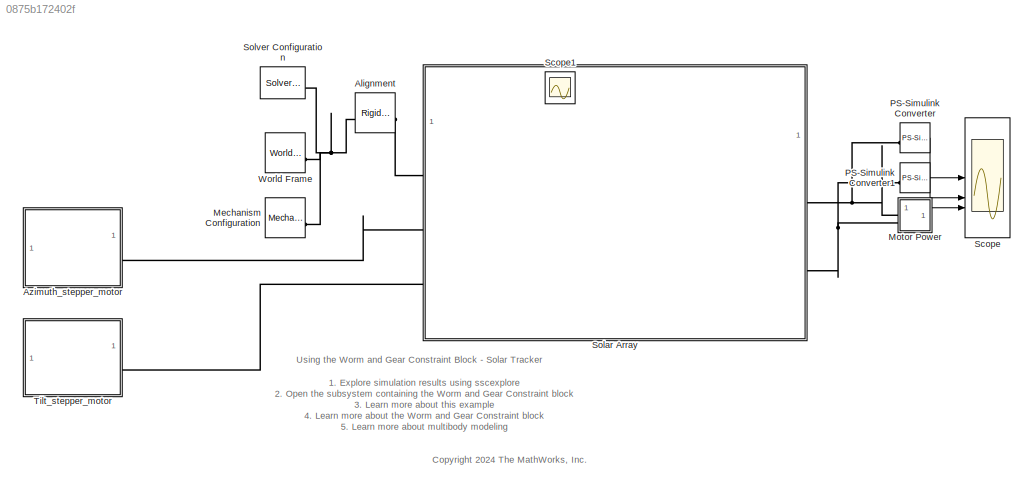
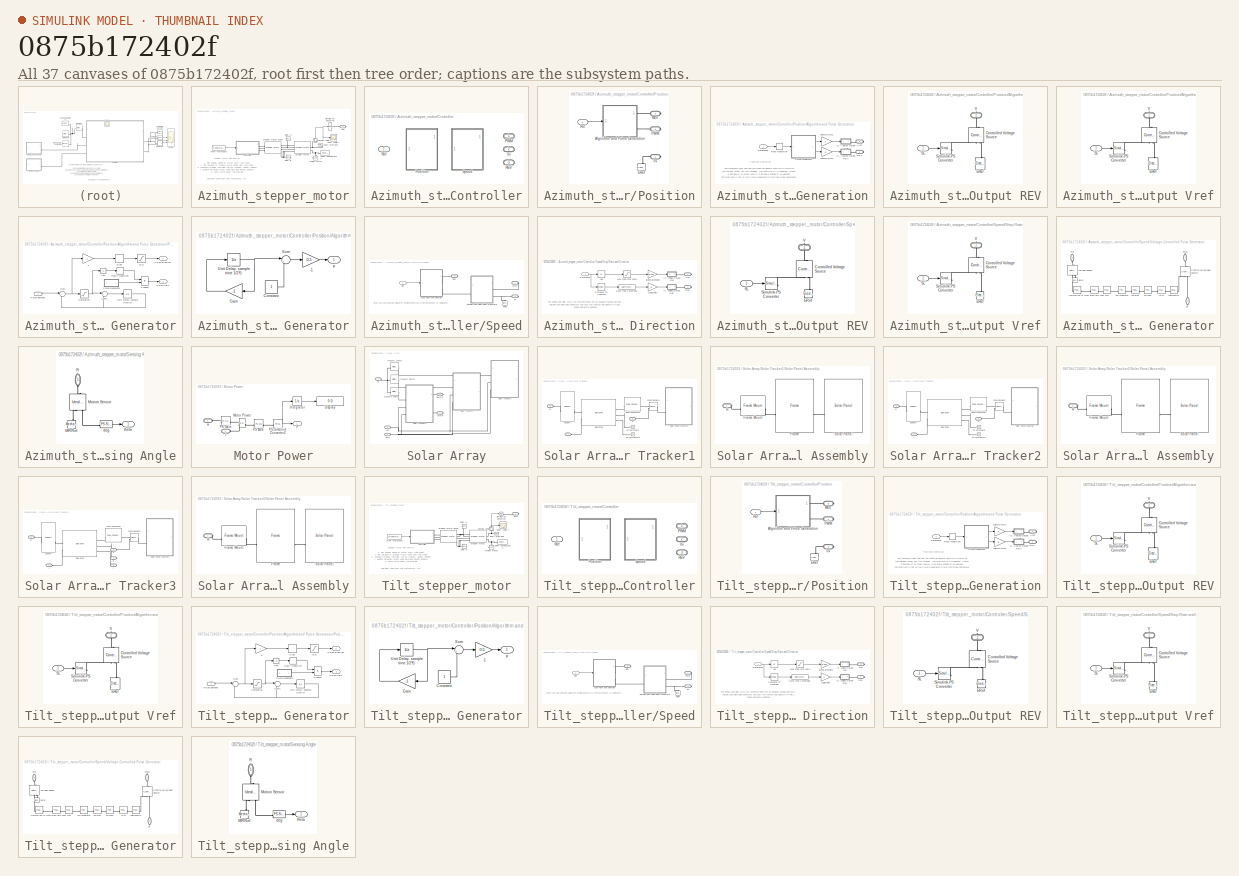
[diagram: thumbnail index - all 37 canvases of the model, root first then tree order]
MODEL slx_0875b172402f
KIND model
CONFIG AbsTol = auto
CONFIG EnableMultiTasking = off
CONFIG FixedStep = 0.01
CONFIG MaxStep = 0.01
CONFIG MinStep = auto
CONFIG PreLoadFcn = addpath(fullfile('WormAndGearConstraintSupport','Data'));\naddpath(fullfile('WormAndGearConstraintSupport','Scripts'));
CONFIG RelTol = 1e-3
CONFIG SampleTimeConstraint = Unconstrained
CONFIG SolverName = VariableStepAuto
CONFIG StartTime = 0.0
CONFIG StopTime = 38
WORKSPACE source: external: MATLAB File  (data not in archive)
BLOCK [Reference] Alignment  REF=sm_lib/Frames and
Transforms/Rigid
Transform
  SourceBlock = sm_lib/Frames and\nTransforms/Rigid\nTransform
  SourceType = Rigid\nTransform
BLOCK [SubSystem] Azimuth_stepper_motor
BLOCK [SubSystem] Azimuth_stepper_motor/Controller
  AttributesFormatString = %<BlockChoice>
  LabelModeActiveChoice = Position
  Variant = on
  VariantControlMode = label
BLOCK [PMIOPort] Azimuth_stepper_motor/Controller/0v
  Port = 2
  Side = Right
BLOCK [PMIOPort] Azimuth_stepper_motor/Controller/PWM
  Side = Right
BLOCK [SubSystem] Azimuth_stepper_motor/Controller/Position
  VariantControl = Position
BLOCK [PMIOPort] Azimuth_stepper_motor/Controller/Position/0v
  Port = 2
  Side = Right
BLOCK [SubSystem] Azimuth_stepper_motor/Controller/Position/Algorithm and Pulse Generation
BLOCK [SubSystem] Azimuth_stepper_motor/Controller/Position/Algorithm and Pulse Generation/IC Analog Output REV
BLOCK [Reference] Azimuth_stepper_motor/Controller/Position/Algorithm and Pulse Generation/IC Analog Output REV/Controlled Voltage Source  REF=fl_lib/Electrical/Electrical Sources/Controlled Voltage
Source
  NameLocation = right
  SourceBlock = fl_lib/Electrical/Electrical Sources/Controlled Voltage\nSource
  SourceType = Controlled Voltage\nSource
BLOCK [Reference] Azimuth_stepper_motor/Controller/Position/Algorithm and Pulse Generation/IC Analog Output REV/ERef  REF=fl_lib/Electrical/Electrical Elements/Electrical Reference
  NameLocation = right
  SourceBlock = fl_lib/Electrical/Electrical Elements/Electrical Reference
  SourceType = Electrical Reference
BLOCK [Inport] Azimuth_stepper_motor/Controller/Position/Algorithm and Pulse Generation/IC Analog Output REV/SL
BLOCK [Reference] Azimuth_stepper_motor/Controller/Position/Algorithm and Pulse Generation/IC Analog Output REV/Simulink-PS Converter  REF=nesl_utility/Simulink-PS
Converter
  SourceBlock = nesl_utility/Simulink-PS\nConverter
  SourceType = Simulink-PS\nConverter
BLOCK [PMIOPort] Azimuth_stepper_motor/Controller/Position/Algorithm and Pulse Generation/IC Analog Output REV/V
  NameLocation = right
  Side = Right
BLOCK [SubSystem] Azimuth_stepper_motor/Controller/Position/Algorithm and Pulse Generation/IC Analog Output Vref
  NameLocation = top
BLOCK [Reference] Azimuth_stepper_motor/Controller/Position/Algorithm and Pulse Generation/IC Analog Output Vref/Controlled Voltage Source  REF=fl_lib/Electrical/Electrical Sources/Controlled Voltage
Source
  NameLocation = right
  SourceBlock = fl_lib/Electrical/Electrical Sources/Controlled Voltage\nSource
  SourceType = Controlled Voltage\nSource
BLOCK [Reference] Azimuth_stepper_motor/Controller/Position/Algorithm and Pulse Generation/IC Analog Output Vref/ERef  REF=fl_lib/Electrical/Electrical Elements/Electrical Reference
  NameLocation = right
  SourceBlock = fl_lib/Electrical/Electrical Elements/Electrical Reference
  SourceType = Electrical Reference
BLOCK [Inport] Azimuth_stepper_motor/Controller/Position/Algorithm and Pulse Generation/IC Analog Output Vref/SL
BLOCK [Reference] Azimuth_stepper_motor/Controller/Position/Algorithm and Pulse Generation/IC Analog Output Vref/Simulink-PS Converter  REF=nesl_utility/Simulink-PS
Converter
  SourceBlock = nesl_utility/Simulink-PS\nConverter
  SourceType = Simulink-PS\nConverter
BLOCK [PMIOPort] Azimuth_stepper_motor/Controller/Position/Algorithm and Pulse Generation/IC Analog Output Vref/V
  NameLocation = right
  Side = Right
BLOCK [Gain] Azimuth_stepper_motor/Controller/Position/Algorithm and Pulse Generation/Logic2Volts1
  Gain = 5
  NameLocation = top
BLOCK [Gain] Azimuth_stepper_motor/Controller/Position/Algorithm and Pulse Generation/Logic2Volts2
  Gain = 5
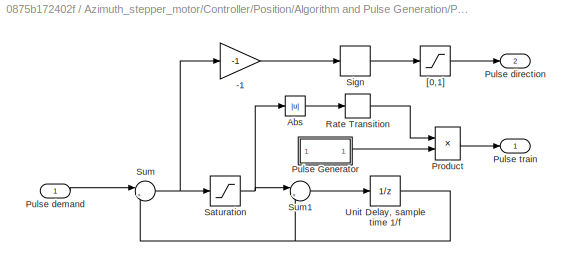
BLOCK [SubSystem] Azimuth_stepper_motor/Controller/Position/Algorithm and Pulse Generation/Pulse Generator
BLOCK [Gain] Azimuth_stepper_motor/Controller/Position/Algorithm and Pulse Generation/Pulse Generator/-1
  Gain = -1
BLOCK [Abs] Azimuth_stepper_motor/Controller/Position/Algorithm and Pulse Generation/Pulse Generator/Abs
  SaturateOnIntegerOverflow = off
BLOCK [Product] Azimuth_stepper_motor/Controller/Position/Algorithm and Pulse Generation/Pulse Generator/Product
  InputSameDT = on
  OutDataTypeStr = Inherit: Same as first input
  SaturateOnIntegerOverflow = on
BLOCK [Inport] Azimuth_stepper_motor/Controller/Position/Algorithm and Pulse Generation/Pulse Generator/Pulse  demand
  SampleTime = 1/f
BLOCK [SubSystem] Azimuth_stepper_motor/Controller/Position/Algorithm and Pulse Generation/Pulse Generator/Pulse Generator
BLOCK [Gain] Azimuth_stepper_motor/Controller/Position/Algorithm and Pulse Generation/Pulse Generator/Pulse Generator/-1
  Gain = 0.5
BLOCK [Constant] Azimuth_stepper_motor/Controller/Position/Algorithm and Pulse Generation/Pulse Generator/Pulse Generator/Constant
  SampleTime = 1/(2*f)
BLOCK [Gain] Azimuth_stepper_motor/Controller/Position/Algorithm and Pulse Generation/Pulse Generator/Pulse Generator/Gain
  Gain = -1
BLOCK [Sum] Azimuth_stepper_motor/Controller/Position/Algorithm and Pulse Generation/Pulse Generator/Pulse Generator/Sum
  Inputs = |++
BLOCK [UnitDelay] Azimuth_stepper_motor/Controller/Position/Algorithm and Pulse Generation/Pulse Generator/Pulse Generator/Unit Delay, sample time 1//2*f)
  HasFrameUpgradeWarning = on
  InitialCondition = -1
  SampleTime = 1/(2*f)
BLOCK [Outport] Azimuth_stepper_motor/Controller/Position/Algorithm and Pulse Generation/Pulse Generator/Pulse Generator/p
  VectorParamsAs1DForOutWhenUnconnected = off
BLOCK [Outport] Azimuth_stepper_motor/Controller/Position/Algorithm and Pulse Generation/Pulse Generator/Pulse direction
  Port = 2
  VectorParamsAs1DForOutWhenUnconnected = off
BLOCK [Outport] Azimuth_stepper_motor/Controller/Position/Algorithm and Pulse Generation/Pulse Generator/Pulse train
  VectorParamsAs1DForOutWhenUnconnected = off
BLOCK [RateTransition] Azimuth_stepper_motor/Controller/Position/Algorithm and Pulse Generation/Pulse Generator/Rate Transition
  Deterministic = off
BLOCK [Saturate] Azimuth_stepper_motor/Controller/Position/Algorithm and Pulse Generation/Pulse Generator/Saturation
  LowerLimit = -1
  UpperLimit = 1
BLOCK [Signum] Azimuth_stepper_motor/Controller/Position/Algorithm and Pulse Generation/Pulse Generator/Sign
BLOCK [Sum] Azimuth_stepper_motor/Controller/Position/Algorithm and Pulse Generation/Pulse Generator/Sum
  Inputs = |+-
BLOCK [Sum] Azimuth_stepper_motor/Controller/Position/Algorithm and Pulse Generation/Pulse Generator/Sum1
  Inputs = |++
BLOCK [UnitDelay] Azimuth_stepper_motor/Controller/Position/Algorithm and Pulse Generation/Pulse Generator/Unit Delay, sample time 1//f
  HasFrameUpgradeWarning = on
  SampleTime = 1/f
BLOCK [Saturate] Azimuth_stepper_motor/Controller/Position/Algorithm and Pulse Generation/Pulse Generator/[0,1]
  LowerLimit = 0
  UpperLimit = 1
BLOCK [PMIOPort] Azimuth_stepper_motor/Controller/Position/Algorithm and Pulse Generation/REV
  Side = Right
BLOCK [RateTransition] Azimuth_stepper_motor/Controller/Position/Algorithm and Pulse Generation/Rate Transition
  Deterministic = off
  NameLocation = top
BLOCK [Inport] Azimuth_stepper_motor/Controller/Position/Algorithm and Pulse Generation/Reference
BLOCK [PMIOPort] Azimuth_stepper_motor/Controller/Position/Algorithm and Pulse Generation/Vref
  NameLocation = top
  Port = 2
  Side = Right
BLOCK [Reference] Azimuth_stepper_motor/Controller/Position/ERef  REF=fl_lib/Electrical/Electrical Elements/Electrical Reference
  NameLocation = left
  SourceBlock = fl_lib/Electrical/Electrical Elements/Electrical Reference
  SourceType = Electrical Reference
BLOCK [PMIOPort] Azimuth_stepper_motor/Controller/Position/PWM
  Side = Right
BLOCK [PMIOPort] Azimuth_stepper_motor/Controller/Position/REV
  NameLocation = top
  Port = 3
  Side = Right
BLOCK [Inport] Azimuth_stepper_motor/Controller/Position/Ref
BLOCK [PMIOPort] Azimuth_stepper_motor/Controller/REV
  Port = 3
  Side = Right
BLOCK [Inport] Azimuth_stepper_motor/Controller/Ref
BLOCK [SubSystem] Azimuth_stepper_motor/Controller/Speed
  VariantControl = Speed
BLOCK [PMIOPort] Azimuth_stepper_motor/Controller/Speed/0v
  Port = 2
  Side = Right
BLOCK [Reference] Azimuth_stepper_motor/Controller/Speed/ERef  REF=fl_lib/Electrical/Electrical Elements/Electrical Reference
  NameLocation = right
  SourceBlock = fl_lib/Electrical/Electrical Elements/Electrical Reference
  SourceType = Electrical Reference
BLOCK [PMIOPort] Azimuth_stepper_motor/Controller/Speed/PWM
  Side = Right
BLOCK [PMIOPort] Azimuth_stepper_motor/Controller/Speed/REV
  Port = 3
  Side = Right
BLOCK [Inport] Azimuth_stepper_motor/Controller/Speed/Ref
BLOCK [SubSystem] Azimuth_stepper_motor/Controller/Speed/Step Rate and Direction
BLOCK [Abs] Azimuth_stepper_motor/Controller/Speed/Step Rate and Direction/Abs
  SaturateOnIntegerOverflow = off
BLOCK [Reference] Azimuth_stepper_motor/Controller/Speed/Step Rate and Direction/Compare To Constant  REF=simulink/Logic and Bit
Operations/Compare
To Constant
  SourceBlock = simulink/Logic and Bit\nOperations/Compare\nTo Constant
  SourceType = Compare To Constant
BLOCK [DataTypeConversion] Azimuth_stepper_motor/Controller/Speed/Step Rate and Direction/Data Type Conversion
  RndMeth = Floor
  SaturateOnIntegerOverflow = off
BLOCK [SubSystem] Azimuth_stepper_motor/Controller/Speed/Step Rate and Direction/IC Analog Output REV
BLOCK [Reference] Azimuth_stepper_motor/Controller/Speed/Step Rate and Direction/IC Analog Output REV/Controlled Voltage Source  REF=fl_lib/Electrical/Electrical Sources/Controlled Voltage
Source
  NameLocation = right
  SourceBlock = fl_lib/Electrical/Electrical Sources/Controlled Voltage\nSource
  SourceType = Controlled Voltage\nSource
BLOCK [Reference] Azimuth_stepper_motor/Controller/Speed/Step Rate and Direction/IC Analog Output REV/ERef  REF=fl_lib/Electrical/Electrical Elements/Electrical Reference
  NameLocation = right
  SourceBlock = fl_lib/Electrical/Electrical Elements/Electrical Reference
  SourceType = Electrical Reference
BLOCK [Inport] Azimuth_stepper_motor/Controller/Speed/Step Rate and Direction/IC Analog Output REV/SL
BLOCK [Reference] Azimuth_stepper_motor/Controller/Speed/Step Rate and Direction/IC Analog Output REV/Simulink-PS Converter  REF=nesl_utility/Simulink-PS
Converter
  SourceBlock = nesl_utility/Simulink-PS\nConverter
  SourceType = Simulink-PS\nConverter
BLOCK [PMIOPort] Azimuth_stepper_motor/Controller/Speed/Step Rate and Direction/IC Analog Output REV/V
  NameLocation = right
  Side = Right
BLOCK [SubSystem] Azimuth_stepper_motor/Controller/Speed/Step Rate and Direction/IC Analog Output Vref
BLOCK [Reference] Azimuth_stepper_motor/Controller/Speed/Step Rate and Direction/IC Analog Output Vref/Controlled Voltage Source  REF=fl_lib/Electrical/Electrical Sources/Controlled Voltage
Source
  NameLocation = right
  SourceBlock = fl_lib/Electrical/Electrical Sources/Controlled Voltage\nSource
  SourceType = Controlled Voltage\nSource
BLOCK [Reference] Azimuth_stepper_motor/Controller/Speed/Step Rate and Direction/IC Analog Output Vref/ERef  REF=fl_lib/Electrical/Electrical Elements/Electrical Reference
  NameLocation = right
  SourceBlock = fl_lib/Electrical/Electrical Elements/Electrical Reference
  SourceType = Electrical Reference
BLOCK [Inport] Azimuth_stepper_motor/Controller/Speed/Step Rate and Direction/IC Analog Output Vref/SL
BLOCK [Reference] Azimuth_stepper_motor/Controller/Speed/Step Rate and Direction/IC Analog Output Vref/Simulink-PS Converter  REF=nesl_utility/Simulink-PS
Converter
  SourceBlock = nesl_utility/Simulink-PS\nConverter
  SourceType = Simulink-PS\nConverter
BLOCK [PMIOPort] Azimuth_stepper_motor/Controller/Speed/Step Rate and Direction/IC Analog Output Vref/V
  NameLocation = right
  Side = Right
BLOCK [Gain] Azimuth_stepper_motor/Controller/Speed/Step Rate and Direction/Logic2Volts
  Gain = 5
BLOCK [Saturate] Azimuth_stepper_motor/Controller/Speed/Step Rate and Direction/Max step rate 100//s
  LowerLimit = 0
  UpperLimit = 100
BLOCK [PMIOPort] Azimuth_stepper_motor/Controller/Speed/Step Rate and Direction/REV
  Side = Right
BLOCK [Inport] Azimuth_stepper_motor/Controller/Speed/Step Rate and Direction/Reference
  NameLocation = top
BLOCK [Gain] Azimuth_stepper_motor/Controller/Speed/Step Rate and Direction/StepRate2Volts
  Gain = 5/100
BLOCK [PMIOPort] Azimuth_stepper_motor/Controller/Speed/Step Rate and Direction/Vref
  Port = 2
  Side = Right
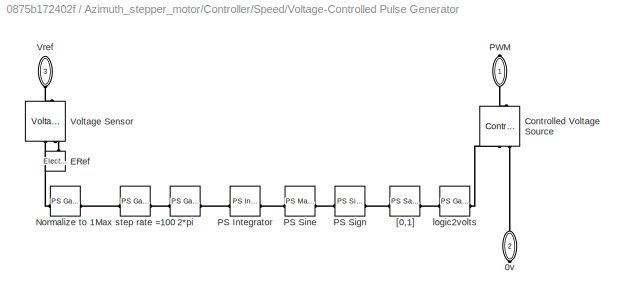
BLOCK [SubSystem] Azimuth_stepper_motor/Controller/Speed/Voltage-Controlled Pulse Generator
BLOCK [PMIOPort] Azimuth_stepper_motor/Controller/Speed/Voltage-Controlled Pulse Generator/0v
  NameLocation = left
  Port = 2
  Side = Right
BLOCK [Reference] Azimuth_stepper_motor/Controller/Speed/Voltage-Controlled Pulse Generator/2*pi  REF=fl_lib/Physical Signals/Functions/PS Gain
  SourceBlock = fl_lib/Physical Signals/Functions/PS Gain
  SourceType = PS Gain
BLOCK [Reference] Azimuth_stepper_motor/Controller/Speed/Voltage-Controlled Pulse Generator/Controlled Voltage Source  REF=fl_lib/Electrical/Electrical Sources/Controlled Voltage
Source
  NameLocation = left
  SourceBlock = fl_lib/Electrical/Electrical Sources/Controlled Voltage\nSource
  SourceType = Controlled Voltage\nSource
BLOCK [Reference] Azimuth_stepper_motor/Controller/Speed/Voltage-Controlled Pulse Generator/ERef  REF=fl_lib/Electrical/Electrical Elements/Electrical Reference
  NameLocation = right
  SourceBlock = fl_lib/Electrical/Electrical Elements/Electrical Reference
  SourceType = Electrical Reference
BLOCK [Reference] Azimuth_stepper_motor/Controller/Speed/Voltage-Controlled Pulse Generator/Max step rate =100  REF=fl_lib/Physical Signals/Functions/PS Gain
  NameLocation = top
  SourceBlock = fl_lib/Physical Signals/Functions/PS Gain
  SourceType = PS Gain
BLOCK [Reference] Azimuth_stepper_motor/Controller/Speed/Voltage-Controlled Pulse Generator/Normalize to 1  REF=fl_lib/Physical Signals/Functions/PS Gain
  SourceBlock = fl_lib/Physical Signals/Functions/PS Gain
  SourceType = PS Gain
BLOCK [Reference] Azimuth_stepper_motor/Controller/Speed/Voltage-Controlled Pulse Generator/PS Integrator  REF=fl_lib/Physical Signals/Linear Operators/PS Integrator
  NameLocation = top
  SourceBlock = fl_lib/Physical Signals/Linear Operators/PS Integrator
  SourceType = PS Integrator
BLOCK [Reference] Azimuth_stepper_motor/Controller/Speed/Voltage-Controlled Pulse Generator/PS Sign  REF=fl_lib/Physical Signals/Nonlinear Operators/PS Sign
  SourceBlock = fl_lib/Physical Signals/Nonlinear Operators/PS Sign
  SourceType = PS Sign
BLOCK [Reference] Azimuth_stepper_motor/Controller/Speed/Voltage-Controlled Pulse Generator/PS Sine  REF=fl_lib/Physical Signals/Functions/PS Math Function
  SourceBlock = fl_lib/Physical Signals/Functions/PS Math Function
  SourceType = PS Math Function
BLOCK [PMIOPort] Azimuth_stepper_motor/Controller/Speed/Voltage-Controlled Pulse Generator/PWM
  NameLocation = left
  Side = Right
BLOCK [Reference] Azimuth_stepper_motor/Controller/Speed/Voltage-Controlled Pulse Generator/Voltage Sensor  REF=fl_lib/Electrical/Electrical Sensors/Voltage Sensor
  NameLocation = right
  SourceBlock = fl_lib/Electrical/Electrical Sensors/Voltage Sensor
  SourceType = Voltage Sensor
BLOCK [PMIOPort] Azimuth_stepper_motor/Controller/Speed/Voltage-Controlled Pulse Generator/Vref
  NameLocation = right
  Port = 3
  Side = Left
BLOCK [Reference] Azimuth_stepper_motor/Controller/Speed/Voltage-Controlled Pulse Generator/[0,1]  REF=fl_lib/Physical Signals/Nonlinear Operators/PS Saturation
  SourceBlock = fl_lib/Physical Signals/Nonlinear Operators/PS Saturation
  SourceType = PS Saturation
BLOCK [Reference] Azimuth_stepper_motor/Controller/Speed/Voltage-Controlled Pulse Generator/logic2volts  REF=fl_lib/Physical Signals/Functions/PS Gain
  SourceBlock = fl_lib/Physical Signals/Functions/PS Gain
  SourceType = PS Gain
BLOCK [Reference] Azimuth_stepper_motor/ERef A+  REF=fl_lib/Electrical/Electrical Elements/Electrical Reference
  NameLocation = top
  SourceBlock = fl_lib/Electrical/Electrical Elements/Electrical Reference
  SourceType = Electrical Reference
BLOCK [Reference] Azimuth_stepper_motor/ERef B-  REF=fl_lib/Electrical/Electrical Elements/Electrical Reference
  SourceBlock = fl_lib/Electrical/Electrical Elements/Electrical Reference
  SourceType = Electrical Reference
BLOCK [FromWorkspace] Azimuth_stepper_motor/From Workspace
  SampleTime = 1
  VariableName = azimuth_input
  ZeroCross = off
BLOCK [Reference] Azimuth_stepper_motor/MRRef Motor  REF=fl_lib/Mechanical/Rotational Elements/Mechanical
Rotational Reference
  NameLocation = left
  SourceBlock = fl_lib/Mechanical/Rotational Elements/Mechanical\nRotational Reference
  SourceType = Mechanical\nRotational Reference
BLOCK [SubSystem] Azimuth_stepper_motor/Sensing Angle
  NameLocation = left
BLOCK [Reference] Azimuth_stepper_motor/Sensing Angle/MRRef  REF=fl_lib/Mechanical/Rotational Elements/Mechanical
Rotational Reference
  NameLocation = left
  SourceBlock = fl_lib/Mechanical/Rotational Elements/Mechanical\nRotational Reference
  SourceType = Mechanical\nRotational Reference
BLOCK [Reference] Azimuth_stepper_motor/Sensing Angle/Motion Sensor  REF=fl_lib/Mechanical/Mechanical Sensors/Ideal Rotational
Motion Sensor
  NameLocation = left
  SourceBlock = fl_lib/Mechanical/Mechanical Sensors/Ideal Rotational\nMotion Sensor
  SourceType = Ideal Rotational\nMotion Sensor
BLOCK [PMIOPort] Azimuth_stepper_motor/Sensing Angle/R
  NameLocation = left
  Side = Left
BLOCK [Reference] Azimuth_stepper_motor/Sensing Angle/deg  REF=nesl_utility/PS-Simulink
Converter
  SourceBlock = nesl_utility/PS-Simulink\nConverter
  SourceType = PS-Simulink\nConverter
BLOCK [Outport] Azimuth_stepper_motor/Sensing Angle/theta
  VectorParamsAs1DForOutWhenUnconnected = off
BLOCK [Scope] Azimuth_stepper_motor/Shaft Angle A
  ActiveDisplayYMaximum = 329.17504038200565
  ActiveDisplayYMinimum = -37.575041631409867
  DataLogging = on
  DataLoggingDecimateData = on
  DataLoggingDecimation = 1
  DataLoggingSaveFormat = Structure With Time
  DataLoggingVariableName = RPM_Y
  Floating = off
  GraphicalSettings = {"Style":{"BackgroundColor":[0.12941176470588237,0.12941176470588237,0.12941176470588237],"AxesColor":[0.07058823529411765,0.07058823529411765,0.07058823529411765],"LabelsColor":[0.8509803921568627,0.8509803921568627,0.8509803921568627],"PreserveColors":false,"Visible":[true],"LineStyle":["-"],"LineWidth":[1.5],"BarWidth":[0.9],"LineColor":["auto"],"LineFaceAlpha":[1],"LineEdgeAlpha":[1],"Marker":...<+2058ch>
  LayoutDimensionsString = [1,1]
  MultipleDisplayCache = [{"MaxYLimMag":329.17504038200565,"MaxYLimReal":329.17504038200565,"MinYLimMag":0,"MinYLimReal":-37.575041631409867,"PlotAsMagnitudePhase":false,"ShowGrid":true,"ShowLegend":false,"Title":"%<SignalLabel>","YLabel":""}]
  NumInputPorts = 1
  ScopeFrameLocation = window
  WasSavedAsWebScope = on
  WindowPosition = [620.000000,336.000000,955.000000,675.000000,]
BLOCK [Reference] Azimuth_stepper_motor/Shaft Free End  REF=fl_lib/Mechanical/Rotational Elements/Rotational Free End
  SourceBlock = fl_lib/Mechanical/Rotational Elements/Rotational Free End
  SourceType = Rotational Free End
BLOCK [Reference] Azimuth_stepper_motor/Simulink-PS Converter  REF=nesl_utility/Simulink-PS
Converter
  SourceBlock = nesl_utility/Simulink-PS\nConverter
  SourceType = Simulink-PS\nConverter
BLOCK [Reference] Azimuth_stepper_motor/Solver Configuration  REF=nesl_utility/Solver
Configuration
  SourceBlock = nesl_utility/Solver\nConfiguration
  SourceType = Solver\nConfiguration
BLOCK [Reference] Azimuth_stepper_motor/Stepper Motor  REF=ee_lib/Electromechanical/Reluctance & Stepper/Stepper Motor
  SourceBlock = ee_lib/Electromechanical/Reluctance & Stepper/Stepper Motor
  SourceType = Stepper Motor
BLOCK [Reference] Azimuth_stepper_motor/Stepper Motor Driver  REF=ee_lib/Electromechanical/Reluctance & Stepper/Stepper Motor Driver
  SourceBlock = ee_lib/Electromechanical/Reluctance & Stepper/Stepper Motor Driver
  SourceType = Stepper Motor Driver
BLOCK [PMIOPort] Azimuth_stepper_motor/Yaw
  Side = Right
BLOCK [Reference] Mechanism Configuration  REF=sm_lib/Utilities/Mechanism
Configuration
  SourceBlock = sm_lib/Utilities/Mechanism\nConfiguration
  SourceType = Mechanism\nConfiguration
BLOCK [SubSystem] Motor Power
BLOCK [Display] Motor Power/Display
  Decimation = 1
BLOCK [Integrator] Motor Power/Integrator
BLOCK [Reference] Motor Power/Motor Power  REF=fl_lib/Physical Signals/Functions/PS Product
  SourceBlock = fl_lib/Physical Signals/Functions/PS Product
  SourceType = PS Product
BLOCK [Outport] Motor Power/P
BLOCK [Reference] Motor Power/PS Abs  REF=fl_lib/Physical Signals/Nonlinear Operators/PS Abs
  SourceBlock = fl_lib/Physical Signals/Nonlinear Operators/PS Abs
  SourceType = PS Abs
BLOCK [Reference] Motor Power/PS Gain  REF=fl_lib/Physical Signals/Functions/PS Gain
  SourceBlock = fl_lib/Physical Signals/Functions/PS Gain
  SourceType = PS Gain
BLOCK [Reference] Motor Power/PS-Simulink Converter2  REF=nesl_utility/PS-Simulink
Converter
  SourceBlock = nesl_utility/PS-Simulink\nConverter
  SourceType = PS-Simulink\nConverter
BLOCK [PMIOPort] Motor Power/t
  Port = 2
  Side = Left
BLOCK [PMIOPort] Motor Power/w
  Side = Left
BLOCK [Reference] PS-Simulink Converter  REF=nesl_utility/PS-Simulink
Converter
  SourceBlock = nesl_utility/PS-Simulink\nConverter
  SourceType = PS-Simulink\nConverter
BLOCK [Reference] PS-Simulink Converter1  REF=nesl_utility/PS-Simulink
Converter
  SourceBlock = nesl_utility/PS-Simulink\nConverter
  SourceType = PS-Simulink\nConverter
BLOCK [Scope] Scope
  ActiveDisplayString = 3
  ActiveDisplayYMaximum = 0.25350408539309555
  ActiveDisplayYMinimum = -0.028167120599232834
  ContainerLayout = {"WindowBounds":[877,307,1295,805],"gridDimensions":{"w":1,"h":1},"tileCount":1,"tileCoverage":1,"columnWeights":1,"rowWeights":1,"tileOccupancy":{}}
  Floating = off
  GraphicalSettings = {"Style":{"BackgroundColor":[0.12941176470588237,0.12941176470588237,0.12941176470588237],"AxesColor":[0.07058823529411765,0.07058823529411765,0.07058823529411765],"LabelsColor":[0.8509803921568627,0.8509803921568627,0.8509803921568627],"PreserveColors":false,"Visible":[true,true,true],"LineStyle":["-","-","-"],"LineWidth":[1.5,1.5,1.5],"BarWidth":[0.9,0.9,0.9],"LineColor":["auto","auto","auto"],"...<+2949ch>
  LayoutDimensionsString = [3 1]
  MultipleDisplayCache = [{"MaxYLimMag":2272.01708008315,"MaxYLimReal":2272.01708008315,"MinYLimMag":0,"MinYLimReal":-2272.015105368328,"PlotAsMagnitudePhase":false,"ShowGrid":true,"ShowLegend":false,"Title":"Worm Angular Velocity (deg\/s)","YLabel":""},{"MaxYLimMag":1.0346447989944589,"MaxYLimReal":1.0346447989944589,"MinYLimMag":0,"MinYLimReal":-0.8919008196363809,"PlotAsMagnitudePhase":false,"ShowGrid":true,"ShowLegend...<+281ch>
  NumInputPorts = 3
  ScopeFrameLocation = window
  Title = Worm Motor Power (W)
  WasSavedAsWebScope = on
  WindowPosition = [722.000000,336.000000,875.000000,686.000000,]
BLOCK [Scope] Scope1
  DataLoggingVariableName = ScopeData1
  Floating = off
  GraphicalSettings = {"GraphicalSettings":{"LegacySettings":true,"Style":{"Style":{"PlotType":"Auto"}}}}
  IOType = viewer
  NumInputPorts = 1
  ScopeFrameLocation = window
  WasSavedAsWebScope = on
  WindowPosition = [1000.000000,510.000000,560.000000,420.000000,]
BLOCK [SubSystem] Solar Array
BLOCK [SubSystem] Solar Array/Solar Tracker1
BLOCK [PMIOPort] Solar Array/Solar Tracker1/B
  Side = Left
BLOCK [Reference] Solar Array/Solar Tracker1/Drive Connection  REF=WormAndGearConstraintLibrary/Drive Connection
  LibrarySourceBlock = sm_solar_tracker_lib/Drive Connection
  SourceBlock = WormAndGearConstraintLibrary/Drive Connection
  SourceType = Drive Connection
BLOCK [Reference] Solar Array/Solar Tracker1/PS Terminator  REF=fl_lib/Physical Signals/Sinks/PS Terminator
  SourceBlock = fl_lib/Physical Signals/Sinks/PS Terminator
  SourceType = PS Terminator
BLOCK [Reference] Solar Array/Solar Tracker1/PS Terminator1  REF=fl_lib/Physical Signals/Sinks/PS Terminator
  SourceBlock = fl_lib/Physical Signals/Sinks/PS Terminator
  SourceType = PS Terminator
BLOCK [Reference] Solar Array/Solar Tracker1/Panel Revolute  REF=sm_lib/Joints/Revolute Joint
  SourceBlock = sm_lib/Joints/Revolute Joint
  SourceType = Revolute Joint
BLOCK [Reference] Solar Array/Solar Tracker1/Slew Drive  REF=WormAndGearConstraintLibrary/Slew Drive
  LibrarySourceBlock = sm_solar_tracker_lib/Slew Drive
  SourceBlock = WormAndGearConstraintLibrary/Slew Drive
  SourceType = Slew Drive
BLOCK [SubSystem] Solar Array/Solar Tracker1/Solar Panel Assembly
BLOCK [Reference] Solar Array/Solar Tracker1/Solar Panel Assembly/Frame  REF=WormAndGearConstraintLibrary/Frame
  LibrarySourceBlock = sm_solar_tracker_lib/Frame
  SourceBlock = WormAndGearConstraintLibrary/Frame
  SourceType = Frame
BLOCK [Reference] Solar Array/Solar Tracker1/Solar Panel Assembly/Frame Mount  REF=WormAndGearConstraintLibrary/Frame Mount
  LibrarySourceBlock = sm_solar_tracker_lib/Frame Mount
  SourceBlock = WormAndGearConstraintLibrary/Frame Mount
  SourceType = Frame Mount
BLOCK [PMIOPort] Solar Array/Solar Tracker1/Solar Panel Assembly/H
  Side = Left
BLOCK [Reference] Solar Array/Solar Tracker1/Solar Panel Assembly/Solar Panel  REF=WormAndGearConstraintLibrary/Solar Panel
  LibrarySourceBlock = sm_solar_tracker_lib/Solar Panel
  SourceBlock = WormAndGearConstraintLibrary/Solar Panel
  SourceType = Solar Panel
BLOCK [Reference] Solar Array/Solar Tracker1/Support  REF=WormAndGearConstraintLibrary/Support
  LibrarySourceBlock = sm_solar_tracker_lib/Support
  SourceBlock = WormAndGearConstraintLibrary/Support
  SourceType = Support
BLOCK [PMIOPort] Solar Array/Solar Tracker1/p
  Port = 3
  Side = Left
BLOCK [PMIOPort] Solar Array/Solar Tracker1/y
  Port = 2
  Side = Left
BLOCK [SubSystem] Solar Array/Solar Tracker2
BLOCK [PMIOPort] Solar Array/Solar Tracker2/B
  Side = Left
BLOCK [Reference] Solar Array/Solar Tracker2/Drive Connection  REF=WormAndGearConstraintLibrary/Drive Connection
  LibrarySourceBlock = sm_solar_tracker_lib/Drive Connection
  SourceBlock = WormAndGearConstraintLibrary/Drive Connection
  SourceType = Drive Connection
BLOCK [Reference] Solar Array/Solar Tracker2/PS Terminator  REF=fl_lib/Physical Signals/Sinks/PS Terminator
  SourceBlock = fl_lib/Physical Signals/Sinks/PS Terminator
  SourceType = PS Terminator
BLOCK [Reference] Solar Array/Solar Tracker2/PS Terminator1  REF=fl_lib/Physical Signals/Sinks/PS Terminator
  SourceBlock = fl_lib/Physical Signals/Sinks/PS Terminator
  SourceType = PS Terminator
BLOCK [Reference] Solar Array/Solar Tracker2/Panel Revolute  REF=sm_lib/Joints/Revolute Joint
  SourceBlock = sm_lib/Joints/Revolute Joint
  SourceType = Revolute Joint
BLOCK [Reference] Solar Array/Solar Tracker2/Slew Drive  REF=WormAndGearConstraintLibrary/Slew Drive
  LibrarySourceBlock = sm_solar_tracker_lib/Slew Drive
  SourceBlock = WormAndGearConstraintLibrary/Slew Drive
  SourceType = Slew Drive
BLOCK [SubSystem] Solar Array/Solar Tracker2/Solar Panel Assembly
BLOCK [Reference] Solar Array/Solar Tracker2/Solar Panel Assembly/Frame  REF=WormAndGearConstraintLibrary/Frame
  LibrarySourceBlock = sm_solar_tracker_lib/Frame
  SourceBlock = WormAndGearConstraintLibrary/Frame
  SourceType = Frame
BLOCK [Reference] Solar Array/Solar Tracker2/Solar Panel Assembly/Frame Mount  REF=WormAndGearConstraintLibrary/Frame Mount
  LibrarySourceBlock = sm_solar_tracker_lib/Frame Mount
  SourceBlock = WormAndGearConstraintLibrary/Frame Mount
  SourceType = Frame Mount
BLOCK [PMIOPort] Solar Array/Solar Tracker2/Solar Panel Assembly/H
  Side = Left
BLOCK [Reference] Solar Array/Solar Tracker2/Solar Panel Assembly/Solar Panel  REF=WormAndGearConstraintLibrary/Solar Panel
  LibrarySourceBlock = sm_solar_tracker_lib/Solar Panel
  SourceBlock = WormAndGearConstraintLibrary/Solar Panel
  SourceType = Solar Panel
BLOCK [Reference] Solar Array/Solar Tracker2/Support  REF=WormAndGearConstraintLibrary/Support
  LibrarySourceBlock = sm_solar_tracker_lib/Support
  SourceBlock = WormAndGearConstraintLibrary/Support
  SourceType = Support
BLOCK [PMIOPort] Solar Array/Solar Tracker2/p
  Port = 3
  Side = Left
BLOCK [PMIOPort] Solar Array/Solar Tracker2/y
  Port = 2
  Side = Left
BLOCK [SubSystem] Solar Array/Solar Tracker3
BLOCK [PMIOPort] Solar Array/Solar Tracker3/B
  Side = Left
BLOCK [Reference] Solar Array/Solar Tracker3/Drive Connection  REF=WormAndGearConstraintLibrary/Drive Connection
  LibrarySourceBlock = sm_solar_tracker_lib/Drive Connection
  SourceBlock = WormAndGearConstraintLibrary/Drive Connection
  SourceType = Drive Connection
BLOCK [Reference] Solar Array/Solar Tracker3/Panel Revolute  REF=sm_lib/Joints/Revolute Joint
  SourceBlock = sm_lib/Joints/Revolute Joint
  SourceType = Revolute Joint
BLOCK [Reference] Solar Array/Solar Tracker3/Slew Drive  REF=WormAndGearConstraintLibrary/Slew Drive
  LibrarySourceBlock = sm_solar_tracker_lib/Slew Drive
  SourceBlock = WormAndGearConstraintLibrary/Slew Drive
  SourceType = Slew Drive
BLOCK [SubSystem] Solar Array/Solar Tracker3/Solar Panel Assembly
BLOCK [Reference] Solar Array/Solar Tracker3/Solar Panel Assembly/Frame  REF=WormAndGearConstraintLibrary/Frame
  LibrarySourceBlock = sm_solar_tracker_lib/Frame
  SourceBlock = WormAndGearConstraintLibrary/Frame
  SourceType = Frame
BLOCK [Reference] Solar Array/Solar Tracker3/Solar Panel Assembly/Frame Mount  REF=WormAndGearConstraintLibrary/Frame Mount
  LibrarySourceBlock = sm_solar_tracker_lib/Frame Mount
  SourceBlock = WormAndGearConstraintLibrary/Frame Mount
  SourceType = Frame Mount
BLOCK [PMIOPort] Solar Array/Solar Tracker3/Solar Panel Assembly/H
  Side = Left
BLOCK [Reference] Solar Array/Solar Tracker3/Solar Panel Assembly/Solar Panel  REF=WormAndGearConstraintLibrary/Solar Panel
  LibrarySourceBlock = sm_solar_tracker_lib/Solar Panel
  SourceBlock = WormAndGearConstraintLibrary/Solar Panel
  SourceType = Solar Panel
BLOCK [Reference] Solar Array/Solar Tracker3/Support  REF=WormAndGearConstraintLibrary/Support
  LibrarySourceBlock = sm_solar_tracker_lib/Support
  SourceBlock = WormAndGearConstraintLibrary/Support
  SourceType = Support
BLOCK [PMIOPort] Solar Array/Solar Tracker3/p
  Port = 3
  Side = Left
BLOCK [PMIOPort] Solar Array/Solar Tracker3/t
  Port = 5
  Side = Right
BLOCK [PMIOPort] Solar Array/Solar Tracker3/w
  Port = 4
  Side = Right
BLOCK [PMIOPort] Solar Array/Solar Tracker3/y
  Port = 2
  Side = Left
BLOCK [Reference] Solar Array/Tracker1 xForm  REF=sm_lib/Frames and
Transforms/Rigid
Transform
  SourceBlock = sm_lib/Frames and\nTransforms/Rigid\nTransform
  SourceType = Rigid\nTransform
BLOCK [Reference] Solar Array/Tracker2 xForm  REF=sm_lib/Frames and
Transforms/Rigid
Transform
  SourceBlock = sm_lib/Frames and\nTransforms/Rigid\nTransform
  SourceType = Rigid\nTransform
BLOCK [Reference] Solar Array/Tracker3 xForm  REF=sm_lib/Frames and
Transforms/Rigid
Transform
  SourceBlock = sm_lib/Frames and\nTransforms/Rigid\nTransform
  SourceType = Rigid\nTransform
BLOCK [PMIOPort] Solar Array/W
  Side = Left
BLOCK [PMIOPort] Solar Array/pitch
  Port = 5
  Side = Left
BLOCK [PMIOPort] Solar Array/tWorm
  Port = 4
  Side = Right
BLOCK [PMIOPort] Solar Array/wWorm
  Port = 2
  Side = Right
BLOCK [PMIOPort] Solar Array/yaw
  Port = 3
  Side = Left
BLOCK [Reference] Solver Configuration  REF=nesl_utility/Solver
Configuration
  SourceBlock = nesl_utility/Solver\nConfiguration
  SourceType = Solver\nConfiguration
BLOCK [SubSystem] Tilt_stepper_motor
BLOCK [SubSystem] Tilt_stepper_motor/Controller
  AttributesFormatString = %<BlockChoice>
  LabelModeActiveChoice = Position
  Variant = on
  VariantControlMode = label
BLOCK [PMIOPort] Tilt_stepper_motor/Controller/0v
  Port = 2
  Side = Right
BLOCK [PMIOPort] Tilt_stepper_motor/Controller/PWM
  Side = Right
BLOCK [SubSystem] Tilt_stepper_motor/Controller/Position
  VariantControl = Position
BLOCK [PMIOPort] Tilt_stepper_motor/Controller/Position/0v
  Port = 2
  Side = Right
BLOCK [SubSystem] Tilt_stepper_motor/Controller/Position/Algorithm and Pulse Generation
BLOCK [SubSystem] Tilt_stepper_motor/Controller/Position/Algorithm and Pulse Generation/IC Analog Output REV
BLOCK [Reference] Tilt_stepper_motor/Controller/Position/Algorithm and Pulse Generation/IC Analog Output REV/Controlled Voltage Source  REF=fl_lib/Electrical/Electrical Sources/Controlled Voltage
Source
  NameLocation = right
  SourceBlock = fl_lib/Electrical/Electrical Sources/Controlled Voltage\nSource
  SourceType = Controlled Voltage\nSource
BLOCK [Reference] Tilt_stepper_motor/Controller/Position/Algorithm and Pulse Generation/IC Analog Output REV/ERef  REF=fl_lib/Electrical/Electrical Elements/Electrical Reference
  NameLocation = right
  SourceBlock = fl_lib/Electrical/Electrical Elements/Electrical Reference
  SourceType = Electrical Reference
BLOCK [Inport] Tilt_stepper_motor/Controller/Position/Algorithm and Pulse Generation/IC Analog Output REV/SL
BLOCK [Reference] Tilt_stepper_motor/Controller/Position/Algorithm and Pulse Generation/IC Analog Output REV/Simulink-PS Converter  REF=nesl_utility/Simulink-PS
Converter
  SourceBlock = nesl_utility/Simulink-PS\nConverter
  SourceType = Simulink-PS\nConverter
BLOCK [PMIOPort] Tilt_stepper_motor/Controller/Position/Algorithm and Pulse Generation/IC Analog Output REV/V
  NameLocation = right
  Side = Right
BLOCK [SubSystem] Tilt_stepper_motor/Controller/Position/Algorithm and Pulse Generation/IC Analog Output Vref
  NameLocation = top
BLOCK [Reference] Tilt_stepper_motor/Controller/Position/Algorithm and Pulse Generation/IC Analog Output Vref/Controlled Voltage Source  REF=fl_lib/Electrical/Electrical Sources/Controlled Voltage
Source
  NameLocation = right
  SourceBlock = fl_lib/Electrical/Electrical Sources/Controlled Voltage\nSource
  SourceType = Controlled Voltage\nSource
BLOCK [Reference] Tilt_stepper_motor/Controller/Position/Algorithm and Pulse Generation/IC Analog Output Vref/ERef  REF=fl_lib/Electrical/Electrical Elements/Electrical Reference
  NameLocation = right
  SourceBlock = fl_lib/Electrical/Electrical Elements/Electrical Reference
  SourceType = Electrical Reference
BLOCK [Inport] Tilt_stepper_motor/Controller/Position/Algorithm and Pulse Generation/IC Analog Output Vref/SL
BLOCK [Reference] Tilt_stepper_motor/Controller/Position/Algorithm and Pulse Generation/IC Analog Output Vref/Simulink-PS Converter  REF=nesl_utility/Simulink-PS
Converter
  SourceBlock = nesl_utility/Simulink-PS\nConverter
  SourceType = Simulink-PS\nConverter
BLOCK [PMIOPort] Tilt_stepper_motor/Controller/Position/Algorithm and Pulse Generation/IC Analog Output Vref/V
  NameLocation = right
  Side = Right
BLOCK [Gain] Tilt_stepper_motor/Controller/Position/Algorithm and Pulse Generation/Logic2Volts1
  Gain = 5
  NameLocation = top
BLOCK [Gain] Tilt_stepper_motor/Controller/Position/Algorithm and Pulse Generation/Logic2Volts2
  Gain = 5
BLOCK [SubSystem] Tilt_stepper_motor/Controller/Position/Algorithm and Pulse Generation/Pulse Generator
BLOCK [Gain] Tilt_stepper_motor/Controller/Position/Algorithm and Pulse Generation/Pulse Generator/-1
  Gain = -1
BLOCK [Abs] Tilt_stepper_motor/Controller/Position/Algorithm and Pulse Generation/Pulse Generator/Abs
  SaturateOnIntegerOverflow = off
BLOCK [Product] Tilt_stepper_motor/Controller/Position/Algorithm and Pulse Generation/Pulse Generator/Product
  InputSameDT = on
  OutDataTypeStr = Inherit: Same as first input
  SaturateOnIntegerOverflow = on
BLOCK [Inport] Tilt_stepper_motor/Controller/Position/Algorithm and Pulse Generation/Pulse Generator/Pulse  demand
  SampleTime = 1/f
BLOCK [SubSystem] Tilt_stepper_motor/Controller/Position/Algorithm and Pulse Generation/Pulse Generator/Pulse Generator
BLOCK [Gain] Tilt_stepper_motor/Controller/Position/Algorithm and Pulse Generation/Pulse Generator/Pulse Generator/-1
  Gain = 0.5
BLOCK [Constant] Tilt_stepper_motor/Controller/Position/Algorithm and Pulse Generation/Pulse Generator/Pulse Generator/Constant
  SampleTime = 1/(2*f)
BLOCK [Gain] Tilt_stepper_motor/Controller/Position/Algorithm and Pulse Generation/Pulse Generator/Pulse Generator/Gain
  Gain = -1
BLOCK [Sum] Tilt_stepper_motor/Controller/Position/Algorithm and Pulse Generation/Pulse Generator/Pulse Generator/Sum
  Inputs = |++
BLOCK [UnitDelay] Tilt_stepper_motor/Controller/Position/Algorithm and Pulse Generation/Pulse Generator/Pulse Generator/Unit Delay, sample time 1//2*f)
  HasFrameUpgradeWarning = on
  InitialCondition = -1
  SampleTime = 1/(2*f)
BLOCK [Outport] Tilt_stepper_motor/Controller/Position/Algorithm and Pulse Generation/Pulse Generator/Pulse Generator/p
  VectorParamsAs1DForOutWhenUnconnected = off
BLOCK [Outport] Tilt_stepper_motor/Controller/Position/Algorithm and Pulse Generation/Pulse Generator/Pulse direction
  Port = 2
  VectorParamsAs1DForOutWhenUnconnected = off
BLOCK [Outport] Tilt_stepper_motor/Controller/Position/Algorithm and Pulse Generation/Pulse Generator/Pulse train
  VectorParamsAs1DForOutWhenUnconnected = off
BLOCK [RateTransition] Tilt_stepper_motor/Controller/Position/Algorithm and Pulse Generation/Pulse Generator/Rate Transition
  Deterministic = off
BLOCK [Saturate] Tilt_stepper_motor/Controller/Position/Algorithm and Pulse Generation/Pulse Generator/Saturation
  LowerLimit = -1
  UpperLimit = 1
BLOCK [Signum] Tilt_stepper_motor/Controller/Position/Algorithm and Pulse Generation/Pulse Generator/Sign
BLOCK [Sum] Tilt_stepper_motor/Controller/Position/Algorithm and Pulse Generation/Pulse Generator/Sum
  Inputs = |+-
BLOCK [Sum] Tilt_stepper_motor/Controller/Position/Algorithm and Pulse Generation/Pulse Generator/Sum1
  Inputs = |++
BLOCK [UnitDelay] Tilt_stepper_motor/Controller/Position/Algorithm and Pulse Generation/Pulse Generator/Unit Delay, sample time 1//f
  HasFrameUpgradeWarning = on
  SampleTime = 1/f
BLOCK [Saturate] Tilt_stepper_motor/Controller/Position/Algorithm and Pulse Generation/Pulse Generator/[0,1]
  LowerLimit = 0
  UpperLimit = 1
BLOCK [PMIOPort] Tilt_stepper_motor/Controller/Position/Algorithm and Pulse Generation/REV
  Side = Right
BLOCK [RateTransition] Tilt_stepper_motor/Controller/Position/Algorithm and Pulse Generation/Rate Transition
  Deterministic = off
  NameLocation = top
BLOCK [Inport] Tilt_stepper_motor/Controller/Position/Algorithm and Pulse Generation/Reference
BLOCK [PMIOPort] Tilt_stepper_motor/Controller/Position/Algorithm and Pulse Generation/Vref
  NameLocation = top
  Port = 2
  Side = Right
BLOCK [Reference] Tilt_stepper_motor/Controller/Position/ERef  REF=fl_lib/Electrical/Electrical Elements/Electrical Reference
  NameLocation = left
  SourceBlock = fl_lib/Electrical/Electrical Elements/Electrical Reference
  SourceType = Electrical Reference
BLOCK [PMIOPort] Tilt_stepper_motor/Controller/Position/PWM
  Side = Right
BLOCK [PMIOPort] Tilt_stepper_motor/Controller/Position/REV
  NameLocation = top
  Port = 3
  Side = Right
BLOCK [Inport] Tilt_stepper_motor/Controller/Position/Ref
BLOCK [PMIOPort] Tilt_stepper_motor/Controller/REV
  Port = 3
  Side = Right
BLOCK [Inport] Tilt_stepper_motor/Controller/Ref
BLOCK [SubSystem] Tilt_stepper_motor/Controller/Speed
  VariantControl = Speed
BLOCK [PMIOPort] Tilt_stepper_motor/Controller/Speed/0v
  Port = 2
  Side = Right
BLOCK [Reference] Tilt_stepper_motor/Controller/Speed/ERef  REF=fl_lib/Electrical/Electrical Elements/Electrical Reference
  NameLocation = right
  SourceBlock = fl_lib/Electrical/Electrical Elements/Electrical Reference
  SourceType = Electrical Reference
BLOCK [PMIOPort] Tilt_stepper_motor/Controller/Speed/PWM
  Side = Right
BLOCK [PMIOPort] Tilt_stepper_motor/Controller/Speed/REV
  Port = 3
  Side = Right
BLOCK [Inport] Tilt_stepper_motor/Controller/Speed/Ref
BLOCK [SubSystem] Tilt_stepper_motor/Controller/Speed/Step Rate and Direction
BLOCK [Abs] Tilt_stepper_motor/Controller/Speed/Step Rate and Direction/Abs
  SaturateOnIntegerOverflow = off
BLOCK [Reference] Tilt_stepper_motor/Controller/Speed/Step Rate and Direction/Compare To Constant  REF=simulink/Logic and Bit
Operations/Compare
To Constant
  SourceBlock = simulink/Logic and Bit\nOperations/Compare\nTo Constant
  SourceType = Compare To Constant
BLOCK [DataTypeConversion] Tilt_stepper_motor/Controller/Speed/Step Rate and Direction/Data Type Conversion
  RndMeth = Floor
  SaturateOnIntegerOverflow = off
BLOCK [SubSystem] Tilt_stepper_motor/Controller/Speed/Step Rate and Direction/IC Analog Output REV
BLOCK [Reference] Tilt_stepper_motor/Controller/Speed/Step Rate and Direction/IC Analog Output REV/Controlled Voltage Source  REF=fl_lib/Electrical/Electrical Sources/Controlled Voltage
Source
  NameLocation = right
  SourceBlock = fl_lib/Electrical/Electrical Sources/Controlled Voltage\nSource
  SourceType = Controlled Voltage\nSource
BLOCK [Reference] Tilt_stepper_motor/Controller/Speed/Step Rate and Direction/IC Analog Output REV/ERef  REF=fl_lib/Electrical/Electrical Elements/Electrical Reference
  NameLocation = right
  SourceBlock = fl_lib/Electrical/Electrical Elements/Electrical Reference
  SourceType = Electrical Reference
BLOCK [Inport] Tilt_stepper_motor/Controller/Speed/Step Rate and Direction/IC Analog Output REV/SL
BLOCK [Reference] Tilt_stepper_motor/Controller/Speed/Step Rate and Direction/IC Analog Output REV/Simulink-PS Converter  REF=nesl_utility/Simulink-PS
Converter
  SourceBlock = nesl_utility/Simulink-PS\nConverter
  SourceType = Simulink-PS\nConverter
BLOCK [PMIOPort] Tilt_stepper_motor/Controller/Speed/Step Rate and Direction/IC Analog Output REV/V
  NameLocation = right
  Side = Right
BLOCK [SubSystem] Tilt_stepper_motor/Controller/Speed/Step Rate and Direction/IC Analog Output Vref
BLOCK [Reference] Tilt_stepper_motor/Controller/Speed/Step Rate and Direction/IC Analog Output Vref/Controlled Voltage Source  REF=fl_lib/Electrical/Electrical Sources/Controlled Voltage
Source
  NameLocation = right
  SourceBlock = fl_lib/Electrical/Electrical Sources/Controlled Voltage\nSource
  SourceType = Controlled Voltage\nSource
BLOCK [Reference] Tilt_stepper_motor/Controller/Speed/Step Rate and Direction/IC Analog Output Vref/ERef  REF=fl_lib/Electrical/Electrical Elements/Electrical Reference
  NameLocation = right
  SourceBlock = fl_lib/Electrical/Electrical Elements/Electrical Reference
  SourceType = Electrical Reference
BLOCK [Inport] Tilt_stepper_motor/Controller/Speed/Step Rate and Direction/IC Analog Output Vref/SL
BLOCK [Reference] Tilt_stepper_motor/Controller/Speed/Step Rate and Direction/IC Analog Output Vref/Simulink-PS Converter  REF=nesl_utility/Simulink-PS
Converter
  SourceBlock = nesl_utility/Simulink-PS\nConverter
  SourceType = Simulink-PS\nConverter
BLOCK [PMIOPort] Tilt_stepper_motor/Controller/Speed/Step Rate and Direction/IC Analog Output Vref/V
  NameLocation = right
  Side = Right
BLOCK [Gain] Tilt_stepper_motor/Controller/Speed/Step Rate and Direction/Logic2Volts
  Gain = 5
BLOCK [Saturate] Tilt_stepper_motor/Controller/Speed/Step Rate and Direction/Max step rate 100//s
  LowerLimit = 0
  UpperLimit = 100
BLOCK [PMIOPort] Tilt_stepper_motor/Controller/Speed/Step Rate and Direction/REV
  Side = Right
BLOCK [Inport] Tilt_stepper_motor/Controller/Speed/Step Rate and Direction/Reference
  NameLocation = top
BLOCK [Gain] Tilt_stepper_motor/Controller/Speed/Step Rate and Direction/StepRate2Volts
  Gain = 5/100
BLOCK [PMIOPort] Tilt_stepper_motor/Controller/Speed/Step Rate and Direction/Vref
  Port = 2
  Side = Right
BLOCK [SubSystem] Tilt_stepper_motor/Controller/Speed/Voltage-Controlled Pulse Generator
BLOCK [PMIOPort] Tilt_stepper_motor/Controller/Speed/Voltage-Controlled Pulse Generator/0v
  NameLocation = left
  Port = 2
  Side = Right
BLOCK [Reference] Tilt_stepper_motor/Controller/Speed/Voltage-Controlled Pulse Generator/2*pi  REF=fl_lib/Physical Signals/Functions/PS Gain
  SourceBlock = fl_lib/Physical Signals/Functions/PS Gain
  SourceType = PS Gain
BLOCK [Reference] Tilt_stepper_motor/Controller/Speed/Voltage-Controlled Pulse Generator/Controlled Voltage Source  REF=fl_lib/Electrical/Electrical Sources/Controlled Voltage
Source
  NameLocation = left
  SourceBlock = fl_lib/Electrical/Electrical Sources/Controlled Voltage\nSource
  SourceType = Controlled Voltage\nSource
BLOCK [Reference] Tilt_stepper_motor/Controller/Speed/Voltage-Controlled Pulse Generator/ERef  REF=fl_lib/Electrical/Electrical Elements/Electrical Reference
  NameLocation = right
  SourceBlock = fl_lib/Electrical/Electrical Elements/Electrical Reference
  SourceType = Electrical Reference
BLOCK [Reference] Tilt_stepper_motor/Controller/Speed/Voltage-Controlled Pulse Generator/Max step rate =100  REF=fl_lib/Physical Signals/Functions/PS Gain
  NameLocation = top
  SourceBlock = fl_lib/Physical Signals/Functions/PS Gain
  SourceType = PS Gain
BLOCK [Reference] Tilt_stepper_motor/Controller/Speed/Voltage-Controlled Pulse Generator/Normalize to 1  REF=fl_lib/Physical Signals/Functions/PS Gain
  SourceBlock = fl_lib/Physical Signals/Functions/PS Gain
  SourceType = PS Gain
BLOCK [Reference] Tilt_stepper_motor/Controller/Speed/Voltage-Controlled Pulse Generator/PS Integrator  REF=fl_lib/Physical Signals/Linear Operators/PS Integrator
  NameLocation = top
  SourceBlock = fl_lib/Physical Signals/Linear Operators/PS Integrator
  SourceType = PS Integrator
BLOCK [Reference] Tilt_stepper_motor/Controller/Speed/Voltage-Controlled Pulse Generator/PS Sign  REF=fl_lib/Physical Signals/Nonlinear Operators/PS Sign
  SourceBlock = fl_lib/Physical Signals/Nonlinear Operators/PS Sign
  SourceType = PS Sign
BLOCK [Reference] Tilt_stepper_motor/Controller/Speed/Voltage-Controlled Pulse Generator/PS Sine  REF=fl_lib/Physical Signals/Functions/PS Math Function
  SourceBlock = fl_lib/Physical Signals/Functions/PS Math Function
  SourceType = PS Math Function
BLOCK [PMIOPort] Tilt_stepper_motor/Controller/Speed/Voltage-Controlled Pulse Generator/PWM
  NameLocation = left
  Side = Right
BLOCK [Reference] Tilt_stepper_motor/Controller/Speed/Voltage-Controlled Pulse Generator/Voltage Sensor  REF=fl_lib/Electrical/Electrical Sensors/Voltage Sensor
  NameLocation = right
  SourceBlock = fl_lib/Electrical/Electrical Sensors/Voltage Sensor
  SourceType = Voltage Sensor
BLOCK [PMIOPort] Tilt_stepper_motor/Controller/Speed/Voltage-Controlled Pulse Generator/Vref
  NameLocation = right
  Port = 3
  Side = Left
BLOCK [Reference] Tilt_stepper_motor/Controller/Speed/Voltage-Controlled Pulse Generator/[0,1]  REF=fl_lib/Physical Signals/Nonlinear Operators/PS Saturation
  SourceBlock = fl_lib/Physical Signals/Nonlinear Operators/PS Saturation
  SourceType = PS Saturation
BLOCK [Reference] Tilt_stepper_motor/Controller/Speed/Voltage-Controlled Pulse Generator/logic2volts  REF=fl_lib/Physical Signals/Functions/PS Gain
  SourceBlock = fl_lib/Physical Signals/Functions/PS Gain
  SourceType = PS Gain
BLOCK [Reference] Tilt_stepper_motor/ERef A+  REF=fl_lib/Electrical/Electrical Elements/Electrical Reference
  NameLocation = top
  SourceBlock = fl_lib/Electrical/Electrical Elements/Electrical Reference
  SourceType = Electrical Reference
BLOCK [Reference] Tilt_stepper_motor/ERef B-  REF=fl_lib/Electrical/Electrical Elements/Electrical Reference
  SourceBlock = fl_lib/Electrical/Electrical Elements/Electrical Reference
  SourceType = Electrical Reference
BLOCK [FromWorkspace] Tilt_stepper_motor/From Workspace
  SampleTime = 1
  VariableName = tilt_input
  ZeroCross = off
BLOCK [Reference] Tilt_stepper_motor/MRRef Motor  REF=fl_lib/Mechanical/Rotational Elements/Mechanical
Rotational Reference
  NameLocation = left
  SourceBlock = fl_lib/Mechanical/Rotational Elements/Mechanical\nRotational Reference
  SourceType = Mechanical\nRotational Reference
BLOCK [PMIOPort] Tilt_stepper_motor/Pitch
  Side = Right
BLOCK [SubSystem] Tilt_stepper_motor/Sensing Angle
  NameLocation = left
BLOCK [Reference] Tilt_stepper_motor/Sensing Angle/MRRef  REF=fl_lib/Mechanical/Rotational Elements/Mechanical
Rotational Reference
  NameLocation = left
  SourceBlock = fl_lib/Mechanical/Rotational Elements/Mechanical\nRotational Reference
  SourceType = Mechanical\nRotational Reference
BLOCK [Reference] Tilt_stepper_motor/Sensing Angle/Motion Sensor  REF=fl_lib/Mechanical/Mechanical Sensors/Ideal Rotational
Motion Sensor
  NameLocation = left
  SourceBlock = fl_lib/Mechanical/Mechanical Sensors/Ideal Rotational\nMotion Sensor
  SourceType = Ideal Rotational\nMotion Sensor
BLOCK [PMIOPort] Tilt_stepper_motor/Sensing Angle/R
  NameLocation = left
  Side = Left
BLOCK [Reference] Tilt_stepper_motor/Sensing Angle/deg  REF=nesl_utility/PS-Simulink
Converter
  SourceBlock = nesl_utility/PS-Simulink\nConverter
  SourceType = PS-Simulink\nConverter
BLOCK [Outport] Tilt_stepper_motor/Sensing Angle/theta
  VectorParamsAs1DForOutWhenUnconnected = off
BLOCK [Scope] Tilt_stepper_motor/Shaft Angle T
  ActiveDisplayYMaximum = 78.075040235814825
  ActiveDisplayYMinimum = -9.67504161516996
  DataLogging = on
  DataLoggingDecimateData = on
  DataLoggingDecimation = 1
  DataLoggingSaveFormat = Structure With Time
  DataLoggingVariableName = RPM_P
  Floating = off
  GraphicalSettings = {"Style":{"BackgroundColor":[0.12941176470588237,0.12941176470588237,0.12941176470588237],"AxesColor":[0.07058823529411765,0.07058823529411765,0.07058823529411765],"LabelsColor":[0.8509803921568627,0.8509803921568627,0.8509803921568627],"PreserveColors":false,"Visible":[true],"LineStyle":["-"],"LineWidth":[1.5],"BarWidth":[0.9],"LineColor":["auto"],"LineFaceAlpha":[1],"LineEdgeAlpha":[1],"Marker":...<+2047ch>
  LayoutDimensionsString = [1,1]
  MultipleDisplayCache = [{"MaxYLimMag":78.075040235814825,"MaxYLimReal":78.075040235814825,"MinYLimMag":0,"MinYLimReal":-9.67504161516996,"PlotAsMagnitudePhase":false,"ShowGrid":true,"ShowLegend":false,"Title":"%<SignalLabel>","YLabel":""}]
  NumInputPorts = 1
  ScopeFrameLocation = window
  TimeSpan = 2
  WasSavedAsWebScope = on
  WindowPosition = [402.000000,386.000000,1072.000000,633.000000,]
BLOCK [Reference] Tilt_stepper_motor/Shaft Free End  REF=fl_lib/Mechanical/Rotational Elements/Rotational Free End
  SourceBlock = fl_lib/Mechanical/Rotational Elements/Rotational Free End
  SourceType = Rotational Free End
BLOCK [Reference] Tilt_stepper_motor/Simulink-PS Converter  REF=nesl_utility/Simulink-PS
Converter
  SourceBlock = nesl_utility/Simulink-PS\nConverter
  SourceType = Simulink-PS\nConverter
BLOCK [Reference] Tilt_stepper_motor/Solver Configuration  REF=nesl_utility/Solver
Configuration
  SourceBlock = nesl_utility/Solver\nConfiguration
  SourceType = Solver\nConfiguration
BLOCK [Reference] Tilt_stepper_motor/Stepper Motor  REF=ee_lib/Electromechanical/Reluctance & Stepper/Stepper Motor
  SourceBlock = ee_lib/Electromechanical/Reluctance & Stepper/Stepper Motor
  SourceType = Stepper Motor
BLOCK [Reference] Tilt_stepper_motor/Stepper Motor Driver  REF=ee_lib/Electromechanical/Reluctance & Stepper/Stepper Motor Driver
  SourceBlock = ee_lib/Electromechanical/Reluctance & Stepper/Stepper Motor Driver
  SourceType = Stepper Motor Driver
BLOCK [Reference] World Frame  REF=sm_lib/Frames and
Transforms/World Frame
  SourceBlock = sm_lib/Frames and\nTransforms/World Frame
  SourceType = World Frame
ANNOTATION (root): 1. Explore simulation results using sscexplore 2. Open the subsystem containing the Worm and Gear Constraint block 3. Learn more about this example 4. Learn more about the Worm and Gear Constraint block 5. Learn more about multibody modeling
ANNOTATION (root): <copyright redacted>
ANNOTATION (root): Using the Worm and Gear Constraint Block - Solar Tracker
ANNOTATION Azimuth_stepper_motor: 1. Plot angular speed of motor shaft ( see code ) 2. Plot voltages of stepper motor driver pins ( see code ) 3. Configure stepper controller (do not change) : Speed , Position 4. Explore simulation results using Simscape Results Explorer 5. Learn more about this example
ANNOTATION Azimuth_stepper_motor: <copyright redacted>
ANNOTATION Azimuth_stepper_motor: Stepper Motor with Control
ANNOTATION Azimuth_stepper_motor/Controller/Position/Algorithm and Pulse Generation: Position Controller
ANNOTATION Azimuth_stepper_motor/Controller/Position/Algorithm and Pulse Generation: The reference input defines the required angular position in terms of the number steps. For this stepper, the step size is 1.8 degrees. Hence a demand of 10 steps results in an angle change of 18 degrees. The step rate is set by the Pulse Generator's Pulse rate mask parameter.
ANNOTATION Azimuth_stepper_motor/Controller/Speed: Step rate and direction algorithm implemented on a microprocessor or dedicated discrete chip
ANNOTATION Azimuth_stepper_motor/Controller/Speed/Step Rate and Direction: The speed controller turns the reference input into an absolute voltage demand for the voltage-controlled pulse generator and sets the reverse flag signal to +5 volts when the speed demand is negative.
ANNOTATION Tilt_stepper_motor: 1. Plot angular speed of motor shaft ( see code ) 2. Plot voltages of stepper motor driver pins ( see code ) 3. Configure stepper controller (do not change) : Speed , Position 4. Explore simulation results using Simscape Results Explorer 5. Learn more about this example
ANNOTATION Tilt_stepper_motor: <copyright redacted>
ANNOTATION Tilt_stepper_motor: Stepper Motor with Control
ANNOTATION Tilt_stepper_motor/Controller/Position/Algorithm and Pulse Generation: Position Controller
ANNOTATION Tilt_stepper_motor/Controller/Position/Algorithm and Pulse Generation: The reference input defines the required angular position in terms of the number steps. For this stepper, the step size is 1.8 degrees. Hence a demand of 10 steps results in an angle change of 18 degrees. The step rate is set by the Pulse Generator's Pulse rate mask parameter.
ANNOTATION Tilt_stepper_motor/Controller/Speed: Step rate and direction algorithm implemented on a microprocessor or dedicated discrete chip
ANNOTATION Tilt_stepper_motor/Controller/Speed/Step Rate and Direction: The speed controller turns the reference input into an absolute voltage demand for the voltage-controlled pulse generator and sets the reverse flag signal to +5 volts when the speed demand is negative.
LINE Azimuth_stepper_motor/Controller/Position/Algorithm and Pulse Generation/IC Analog Output REV/SL:1 -> Azimuth_stepper_motor/Controller/Position/Algorithm and Pulse Generation/IC Analog Output REV/Simulink-PS Converter:1
LINE Azimuth_stepper_motor/Controller/Position/Algorithm and Pulse Generation/IC Analog Output Vref/SL:1 -> Azimuth_stepper_motor/Controller/Position/Algorithm and Pulse Generation/IC Analog Output Vref/Simulink-PS Converter:1
LINE Azimuth_stepper_motor/Controller/Position/Algorithm and Pulse Generation/Logic2Volts1:1 -> Azimuth_stepper_motor/Controller/Position/Algorithm and Pulse Generation/IC Analog Output Vref:1
LINE Azimuth_stepper_motor/Controller/Position/Algorithm and Pulse Generation/Logic2Volts2:1 -> Azimuth_stepper_motor/Controller/Position/Algorithm and Pulse Generation/IC Analog Output REV:1
LINE Azimuth_stepper_motor/Controller/Position/Algorithm and Pulse Generation/Pulse Generator/-1:1 -> Azimuth_stepper_motor/Controller/Position/Algorithm and Pulse Generation/Pulse Generator/Sign:1
LINE Azimuth_stepper_motor/Controller/Position/Algorithm and Pulse Generation/Pulse Generator/Abs:1 -> Azimuth_stepper_motor/Controller/Position/Algorithm and Pulse Generation/Pulse Generator/Rate Transition:1
LINE Azimuth_stepper_motor/Controller/Position/Algorithm and Pulse Generation/Pulse Generator/Product:1 -> Azimuth_stepper_motor/Controller/Position/Algorithm and Pulse Generation/Pulse Generator/Pulse train:1
LINE Azimuth_stepper_motor/Controller/Position/Algorithm and Pulse Generation/Pulse Generator/Pulse  demand:1 -> Azimuth_stepper_motor/Controller/Position/Algorithm and Pulse Generation/Pulse Generator/Sum:1
LINE Azimuth_stepper_motor/Controller/Position/Algorithm and Pulse Generation/Pulse Generator/Pulse Generator/-1:1 -> Azimuth_stepper_motor/Controller/Position/Algorithm and Pulse Generation/Pulse Generator/Pulse Generator/p:1
LINE Azimuth_stepper_motor/Controller/Position/Algorithm and Pulse Generation/Pulse Generator/Pulse Generator/Constant:1 -> Azimuth_stepper_motor/Controller/Position/Algorithm and Pulse Generation/Pulse Generator/Pulse Generator/Sum:2
LINE Azimuth_stepper_motor/Controller/Position/Algorithm and Pulse Generation/Pulse Generator/Pulse Generator/Gain:1 -> Azimuth_stepper_motor/Controller/Position/Algorithm and Pulse Generation/Pulse Generator/Pulse Generator/Unit Delay, sample time 1//2*f):1
LINE Azimuth_stepper_motor/Controller/Position/Algorithm and Pulse Generation/Pulse Generator/Pulse Generator/Sum:1 -> Azimuth_stepper_motor/Controller/Position/Algorithm and Pulse Generation/Pulse Generator/Pulse Generator/-1:1
NET Azimuth_stepper_motor/Controller/Position/Algorithm and Pulse Generation/Pulse Generator/Pulse Generator/Unit Delay, sample time 1//2*f):1 -> Azimuth_stepper_motor/Controller/Position/Algorithm and Pulse Generation/Pulse Generator/Pulse Generator/Gain:1, Azimuth_stepper_motor/Controller/Position/Algorithm and Pulse Generation/Pulse Generator/Pulse Generator/Sum:1
LINE Azimuth_stepper_motor/Controller/Position/Algorithm and Pulse Generation/Pulse Generator/Pulse Generator:1 -> Azimuth_stepper_motor/Controller/Position/Algorithm and Pulse Generation/Pulse Generator/Product:2
LINE Azimuth_stepper_motor/Controller/Position/Algorithm and Pulse Generation/Pulse Generator/Rate Transition:1 -> Azimuth_stepper_motor/Controller/Position/Algorithm and Pulse Generation/Pulse Generator/Product:1
NET Azimuth_stepper_motor/Controller/Position/Algorithm and Pulse Generation/Pulse Generator/Saturation:1 -> Azimuth_stepper_motor/Controller/Position/Algorithm and Pulse Generation/Pulse Generator/Abs:1, Azimuth_stepper_motor/Controller/Position/Algorithm and Pulse Generation/Pulse Generator/Sum1:1
LINE Azimuth_stepper_motor/Controller/Position/Algorithm and Pulse Generation/Pulse Generator/Sign:1 -> Azimuth_stepper_motor/Controller/Position/Algorithm and Pulse Generation/Pulse Generator/[0,1]:1
LINE Azimuth_stepper_motor/Controller/Position/Algorithm and Pulse Generation/Pulse Generator/Sum1:1 -> Azimuth_stepper_motor/Controller/Position/Algorithm and Pulse Generation/Pulse Generator/Unit Delay, sample time 1//f:1
NET Azimuth_stepper_motor/Controller/Position/Algorithm and Pulse Generation/Pulse Generator/Sum:1 -> Azimuth_stepper_motor/Controller/Position/Algorithm and Pulse Generation/Pulse Generator/-1:1, Azimuth_stepper_motor/Controller/Position/Algorithm and Pulse Generation/Pulse Generator/Saturation:1
NET Azimuth_stepper_motor/Controller/Position/Algorithm and Pulse Generation/Pulse Generator/Unit Delay, sample time 1//f:1 -> Azimuth_stepper_motor/Controller/Position/Algorithm and Pulse Generation/Pulse Generator/Sum1:2, Azimuth_stepper_motor/Controller/Position/Algorithm and Pulse Generation/Pulse Generator/Sum:2
LINE Azimuth_stepper_motor/Controller/Position/Algorithm and Pulse Generation/Pulse Generator/[0,1]:1 -> Azimuth_stepper_motor/Controller/Position/Algorithm and Pulse Generation/Pulse Generator/Pulse direction:1
LINE Azimuth_stepper_motor/Controller/Position/Algorithm and Pulse Generation/Pulse Generator:1 -> Azimuth_stepper_motor/Controller/Position/Algorithm and Pulse Generation/Logic2Volts1:1
LINE Azimuth_stepper_motor/Controller/Position/Algorithm and Pulse Generation/Pulse Generator:2 -> Azimuth_stepper_motor/Controller/Position/Algorithm and Pulse Generation/Logic2Volts2:1
LINE Azimuth_stepper_motor/Controller/Position/Algorithm and Pulse Generation/Rate Transition:1 -> Azimuth_stepper_motor/Controller/Position/Algorithm and Pulse Generation/Pulse Generator:1
LINE Azimuth_stepper_motor/Controller/Position/Algorithm and Pulse Generation/Reference:1 -> Azimuth_stepper_motor/Controller/Position/Algorithm and Pulse Generation/Rate Transition:1
LINE Azimuth_stepper_motor/Controller/Position/Ref:1 -> Azimuth_stepper_motor/Controller/Position/Algorithm and Pulse Generation:1
LINE Azimuth_stepper_motor/Controller/Speed/Ref:1 -> Azimuth_stepper_motor/Controller/Speed/Step Rate and Direction:1
LINE Azimuth_stepper_motor/Controller/Speed/Step Rate and Direction/Abs:1 -> Azimuth_stepper_motor/Controller/Speed/Step Rate and Direction/Max step rate 100//s:1
LINE Azimuth_stepper_motor/Controller/Speed/Step Rate and Direction/Compare To Constant:1 -> Azimuth_stepper_motor/Controller/Speed/Step Rate and Direction/Data Type Conversion:1
LINE Azimuth_stepper_motor/Controller/Speed/Step Rate and Direction/Data Type Conversion:1 -> Azimuth_stepper_motor/Controller/Speed/Step Rate and Direction/Logic2Volts:1
LINE Azimuth_stepper_motor/Controller/Speed/Step Rate and Direction/IC Analog Output REV/SL:1 -> Azimuth_stepper_motor/Controller/Speed/Step Rate and Direction/IC Analog Output REV/Simulink-PS Converter:1
LINE Azimuth_stepper_motor/Controller/Speed/Step Rate and Direction/IC Analog Output Vref/SL:1 -> Azimuth_stepper_motor/Controller/Speed/Step Rate and Direction/IC Analog Output Vref/Simulink-PS Converter:1
LINE Azimuth_stepper_motor/Controller/Speed/Step Rate and Direction/Logic2Volts:1 -> Azimuth_stepper_motor/Controller/Speed/Step Rate and Direction/IC Analog Output REV:1
LINE Azimuth_stepper_motor/Controller/Speed/Step Rate and Direction/Max step rate 100//s:1 -> Azimuth_stepper_motor/Controller/Speed/Step Rate and Direction/StepRate2Volts:1
NET Azimuth_stepper_motor/Controller/Speed/Step Rate and Direction/Reference:1 -> Azimuth_stepper_motor/Controller/Speed/Step Rate and Direction/Abs:1, Azimuth_stepper_motor/Controller/Speed/Step Rate and Direction/Compare To Constant:1
LINE Azimuth_stepper_motor/Controller/Speed/Step Rate and Direction/StepRate2Volts:1 -> Azimuth_stepper_motor/Controller/Speed/Step Rate and Direction/IC Analog Output Vref:1
LINE Azimuth_stepper_motor/From Workspace:1 -> Azimuth_stepper_motor/Controller:1
LINE Azimuth_stepper_motor/Sensing Angle/deg:1 -> Azimuth_stepper_motor/Sensing Angle/theta:1
NET Azimuth_stepper_motor/Sensing Angle:1 -> Azimuth_stepper_motor/Shaft Angle A:1, Azimuth_stepper_motor/Simulink-PS Converter:1
LINE Motor Power/Integrator:1 -> Motor Power/Display:1
NET Motor Power/PS-Simulink Converter2:1 -> Motor Power/Integrator:1, Motor Power/P:1
LINE Motor Power:1 -> Scope:3
LINE PS-Simulink Converter1:1 -> Scope:2
LINE PS-Simulink Converter:1 -> Scope:1
LINE Tilt_stepper_motor/Controller/Position/Algorithm and Pulse Generation/IC Analog Output REV/SL:1 -> Tilt_stepper_motor/Controller/Position/Algorithm and Pulse Generation/IC Analog Output REV/Simulink-PS Converter:1
LINE Tilt_stepper_motor/Controller/Position/Algorithm and Pulse Generation/IC Analog Output Vref/SL:1 -> Tilt_stepper_motor/Controller/Position/Algorithm and Pulse Generation/IC Analog Output Vref/Simulink-PS Converter:1
LINE Tilt_stepper_motor/Controller/Position/Algorithm and Pulse Generation/Logic2Volts1:1 -> Tilt_stepper_motor/Controller/Position/Algorithm and Pulse Generation/IC Analog Output Vref:1
LINE Tilt_stepper_motor/Controller/Position/Algorithm and Pulse Generation/Logic2Volts2:1 -> Tilt_stepper_motor/Controller/Position/Algorithm and Pulse Generation/IC Analog Output REV:1
LINE Tilt_stepper_motor/Controller/Position/Algorithm and Pulse Generation/Pulse Generator/-1:1 -> Tilt_stepper_motor/Controller/Position/Algorithm and Pulse Generation/Pulse Generator/Sign:1
LINE Tilt_stepper_motor/Controller/Position/Algorithm and Pulse Generation/Pulse Generator/Abs:1 -> Tilt_stepper_motor/Controller/Position/Algorithm and Pulse Generation/Pulse Generator/Rate Transition:1
LINE Tilt_stepper_motor/Controller/Position/Algorithm and Pulse Generation/Pulse Generator/Product:1 -> Tilt_stepper_motor/Controller/Position/Algorithm and Pulse Generation/Pulse Generator/Pulse train:1
LINE Tilt_stepper_motor/Controller/Position/Algorithm and Pulse Generation/Pulse Generator/Pulse  demand:1 -> Tilt_stepper_motor/Controller/Position/Algorithm and Pulse Generation/Pulse Generator/Sum:1
LINE Tilt_stepper_motor/Controller/Position/Algorithm and Pulse Generation/Pulse Generator/Pulse Generator/-1:1 -> Tilt_stepper_motor/Controller/Position/Algorithm and Pulse Generation/Pulse Generator/Pulse Generator/p:1
LINE Tilt_stepper_motor/Controller/Position/Algorithm and Pulse Generation/Pulse Generator/Pulse Generator/Constant:1 -> Tilt_stepper_motor/Controller/Position/Algorithm and Pulse Generation/Pulse Generator/Pulse Generator/Sum:2
LINE Tilt_stepper_motor/Controller/Position/Algorithm and Pulse Generation/Pulse Generator/Pulse Generator/Gain:1 -> Tilt_stepper_motor/Controller/Position/Algorithm and Pulse Generation/Pulse Generator/Pulse Generator/Unit Delay, sample time 1//2*f):1
LINE Tilt_stepper_motor/Controller/Position/Algorithm and Pulse Generation/Pulse Generator/Pulse Generator/Sum:1 -> Tilt_stepper_motor/Controller/Position/Algorithm and Pulse Generation/Pulse Generator/Pulse Generator/-1:1
NET Tilt_stepper_motor/Controller/Position/Algorithm and Pulse Generation/Pulse Generator/Pulse Generator/Unit Delay, sample time 1//2*f):1 -> Tilt_stepper_motor/Controller/Position/Algorithm and Pulse Generation/Pulse Generator/Pulse Generator/Gain:1, Tilt_stepper_motor/Controller/Position/Algorithm and Pulse Generation/Pulse Generator/Pulse Generator/Sum:1
LINE Tilt_stepper_motor/Controller/Position/Algorithm and Pulse Generation/Pulse Generator/Pulse Generator:1 -> Tilt_stepper_motor/Controller/Position/Algorithm and Pulse Generation/Pulse Generator/Product:2
LINE Tilt_stepper_motor/Controller/Position/Algorithm and Pulse Generation/Pulse Generator/Rate Transition:1 -> Tilt_stepper_motor/Controller/Position/Algorithm and Pulse Generation/Pulse Generator/Product:1
NET Tilt_stepper_motor/Controller/Position/Algorithm and Pulse Generation/Pulse Generator/Saturation:1 -> Tilt_stepper_motor/Controller/Position/Algorithm and Pulse Generation/Pulse Generator/Abs:1, Tilt_stepper_motor/Controller/Position/Algorithm and Pulse Generation/Pulse Generator/Sum1:1
LINE Tilt_stepper_motor/Controller/Position/Algorithm and Pulse Generation/Pulse Generator/Sign:1 -> Tilt_stepper_motor/Controller/Position/Algorithm and Pulse Generation/Pulse Generator/[0,1]:1
LINE Tilt_stepper_motor/Controller/Position/Algorithm and Pulse Generation/Pulse Generator/Sum1:1 -> Tilt_stepper_motor/Controller/Position/Algorithm and Pulse Generation/Pulse Generator/Unit Delay, sample time 1//f:1
NET Tilt_stepper_motor/Controller/Position/Algorithm and Pulse Generation/Pulse Generator/Sum:1 -> Tilt_stepper_motor/Controller/Position/Algorithm and Pulse Generation/Pulse Generator/-1:1, Tilt_stepper_motor/Controller/Position/Algorithm and Pulse Generation/Pulse Generator/Saturation:1
NET Tilt_stepper_motor/Controller/Position/Algorithm and Pulse Generation/Pulse Generator/Unit Delay, sample time 1//f:1 -> Tilt_stepper_motor/Controller/Position/Algorithm and Pulse Generation/Pulse Generator/Sum1:2, Tilt_stepper_motor/Controller/Position/Algorithm and Pulse Generation/Pulse Generator/Sum:2
LINE Tilt_stepper_motor/Controller/Position/Algorithm and Pulse Generation/Pulse Generator/[0,1]:1 -> Tilt_stepper_motor/Controller/Position/Algorithm and Pulse Generation/Pulse Generator/Pulse direction:1
LINE Tilt_stepper_motor/Controller/Position/Algorithm and Pulse Generation/Pulse Generator:1 -> Tilt_stepper_motor/Controller/Position/Algorithm and Pulse Generation/Logic2Volts1:1
LINE Tilt_stepper_motor/Controller/Position/Algorithm and Pulse Generation/Pulse Generator:2 -> Tilt_stepper_motor/Controller/Position/Algorithm and Pulse Generation/Logic2Volts2:1
LINE Tilt_stepper_motor/Controller/Position/Algorithm and Pulse Generation/Rate Transition:1 -> Tilt_stepper_motor/Controller/Position/Algorithm and Pulse Generation/Pulse Generator:1
LINE Tilt_stepper_motor/Controller/Position/Algorithm and Pulse Generation/Reference:1 -> Tilt_stepper_motor/Controller/Position/Algorithm and Pulse Generation/Rate Transition:1
LINE Tilt_stepper_motor/Controller/Position/Ref:1 -> Tilt_stepper_motor/Controller/Position/Algorithm and Pulse Generation:1
LINE Tilt_stepper_motor/Controller/Speed/Ref:1 -> Tilt_stepper_motor/Controller/Speed/Step Rate and Direction:1
LINE Tilt_stepper_motor/Controller/Speed/Step Rate and Direction/Abs:1 -> Tilt_stepper_motor/Controller/Speed/Step Rate and Direction/Max step rate 100//s:1
LINE Tilt_stepper_motor/Controller/Speed/Step Rate and Direction/Compare To Constant:1 -> Tilt_stepper_motor/Controller/Speed/Step Rate and Direction/Data Type Conversion:1
LINE Tilt_stepper_motor/Controller/Speed/Step Rate and Direction/Data Type Conversion:1 -> Tilt_stepper_motor/Controller/Speed/Step Rate and Direction/Logic2Volts:1
LINE Tilt_stepper_motor/Controller/Speed/Step Rate and Direction/IC Analog Output REV/SL:1 -> Tilt_stepper_motor/Controller/Speed/Step Rate and Direction/IC Analog Output REV/Simulink-PS Converter:1
LINE Tilt_stepper_motor/Controller/Speed/Step Rate and Direction/IC Analog Output Vref/SL:1 -> Tilt_stepper_motor/Controller/Speed/Step Rate and Direction/IC Analog Output Vref/Simulink-PS Converter:1
LINE Tilt_stepper_motor/Controller/Speed/Step Rate and Direction/Logic2Volts:1 -> Tilt_stepper_motor/Controller/Speed/Step Rate and Direction/IC Analog Output REV:1
LINE Tilt_stepper_motor/Controller/Speed/Step Rate and Direction/Max step rate 100//s:1 -> Tilt_stepper_motor/Controller/Speed/Step Rate and Direction/StepRate2Volts:1
NET Tilt_stepper_motor/Controller/Speed/Step Rate and Direction/Reference:1 -> Tilt_stepper_motor/Controller/Speed/Step Rate and Direction/Abs:1, Tilt_stepper_motor/Controller/Speed/Step Rate and Direction/Compare To Constant:1
LINE Tilt_stepper_motor/Controller/Speed/Step Rate and Direction/StepRate2Volts:1 -> Tilt_stepper_motor/Controller/Speed/Step Rate and Direction/IC Analog Output Vref:1
LINE Tilt_stepper_motor/From Workspace:1 -> Tilt_stepper_motor/Controller:1
LINE Tilt_stepper_motor/Sensing Angle/deg:1 -> Tilt_stepper_motor/Sensing Angle/theta:1
NET Tilt_stepper_motor/Sensing Angle:1 -> Tilt_stepper_motor/Shaft Angle T:1, Tilt_stepper_motor/Simulink-PS Converter:1
PNET net1: Alignment:LConn1 -- Mechanism Configuration:RConn1 -- Solver Configuration:RConn1 -- World Frame:RConn1
PLINE Alignment:RConn1 -- Solar Array:LConn1
PLINE Azimuth_stepper_motor/Controller/Position/0v:RConn1 -- Azimuth_stepper_motor/Controller/Position/ERef:LConn1
PLINE Azimuth_stepper_motor/Controller/Position/Algorithm and Pulse Generation/IC Analog Output REV/Controlled Voltage Source:LConn1 -- Azimuth_stepper_motor/Controller/Position/Algorithm and Pulse Generation/IC Analog Output REV/V:RConn1
PLINE Azimuth_stepper_motor/Controller/Position/Algorithm and Pulse Generation/IC Analog Output REV/Controlled Voltage Source:RConn1 -- Azimuth_stepper_motor/Controller/Position/Algorithm and Pulse Generation/IC Analog Output REV/Simulink-PS Converter:RConn1
PLINE Azimuth_stepper_motor/Controller/Position/Algorithm and Pulse Generation/IC Analog Output REV/Controlled Voltage Source:RConn2 -- Azimuth_stepper_motor/Controller/Position/Algorithm and Pulse Generation/IC Analog Output REV/ERef:LConn1
PLINE Azimuth_stepper_motor/Controller/Position/Algorithm and Pulse Generation/IC Analog Output REV:RConn1 -- Azimuth_stepper_motor/Controller/Position/Algorithm and Pulse Generation/REV:RConn1
PLINE Azimuth_stepper_motor/Controller/Position/Algorithm and Pulse Generation/IC Analog Output Vref/Controlled Voltage Source:LConn1 -- Azimuth_stepper_motor/Controller/Position/Algorithm and Pulse Generation/IC Analog Output Vref/V:RConn1
PLINE Azimuth_stepper_motor/Controller/Position/Algorithm and Pulse Generation/IC Analog Output Vref/Controlled Voltage Source:RConn1 -- Azimuth_stepper_motor/Controller/Position/Algorithm and Pulse Generation/IC Analog Output Vref/Simulink-PS Converter:RConn1
PLINE Azimuth_stepper_motor/Controller/Position/Algorithm and Pulse Generation/IC Analog Output Vref/Controlled Voltage Source:RConn2 -- Azimuth_stepper_motor/Controller/Position/Algorithm and Pulse Generation/IC Analog Output Vref/ERef:LConn1
PLINE Azimuth_stepper_motor/Controller/Position/Algorithm and Pulse Generation/IC Analog Output Vref:RConn1 -- Azimuth_stepper_motor/Controller/Position/Algorithm and Pulse Generation/Vref:RConn1
PLINE Azimuth_stepper_motor/Controller/Position/Algorithm and Pulse Generation:RConn1 -- Azimuth_stepper_motor/Controller/Position/REV:RConn1
PLINE Azimuth_stepper_motor/Controller/Position/Algorithm and Pulse Generation:RConn2 -- Azimuth_stepper_motor/Controller/Position/PWM:RConn1
PNET net2: Azimuth_stepper_motor/Controller/Speed/0v:RConn1 -- Azimuth_stepper_motor/Controller/Speed/ERef:LConn1 -- Azimuth_stepper_motor/Controller/Speed/Voltage-Controlled Pulse Generator:RConn2
PLINE Azimuth_stepper_motor/Controller/Speed/PWM:RConn1 -- Azimuth_stepper_motor/Controller/Speed/Voltage-Controlled Pulse Generator:RConn1
PLINE Azimuth_stepper_motor/Controller/Speed/REV:RConn1 -- Azimuth_stepper_motor/Controller/Speed/Step Rate and Direction:RConn1
PLINE Azimuth_stepper_motor/Controller/Speed/Step Rate and Direction/IC Analog Output REV/Controlled Voltage Source:LConn1 -- Azimuth_stepper_motor/Controller/Speed/Step Rate and Direction/IC Analog Output REV/V:RConn1
PLINE Azimuth_stepper_motor/Controller/Speed/Step Rate and Direction/IC Analog Output REV/Controlled Voltage Source:RConn1 -- Azimuth_stepper_motor/Controller/Speed/Step Rate and Direction/IC Analog Output REV/Simulink-PS Converter:RConn1
PLINE Azimuth_stepper_motor/Controller/Speed/Step Rate and Direction/IC Analog Output REV/Controlled Voltage Source:RConn2 -- Azimuth_stepper_motor/Controller/Speed/Step Rate and Direction/IC Analog Output REV/ERef:LConn1
PLINE Azimuth_stepper_motor/Controller/Speed/Step Rate and Direction/IC Analog Output REV:RConn1 -- Azimuth_stepper_motor/Controller/Speed/Step Rate and Direction/REV:RConn1
PLINE Azimuth_stepper_motor/Controller/Speed/Step Rate and Direction/IC Analog Output Vref/Controlled Voltage Source:LConn1 -- Azimuth_stepper_motor/Controller/Speed/Step Rate and Direction/IC Analog Output Vref/V:RConn1
PLINE Azimuth_stepper_motor/Controller/Speed/Step Rate and Direction/IC Analog Output Vref/Controlled Voltage Source:RConn1 -- Azimuth_stepper_motor/Controller/Speed/Step Rate and Direction/IC Analog Output Vref/Simulink-PS Converter:RConn1
PLINE Azimuth_stepper_motor/Controller/Speed/Step Rate and Direction/IC Analog Output Vref/Controlled Voltage Source:RConn2 -- Azimuth_stepper_motor/Controller/Speed/Step Rate and Direction/IC Analog Output Vref/ERef:LConn1
PLINE Azimuth_stepper_motor/Controller/Speed/Step Rate and Direction/IC Analog Output Vref:RConn1 -- Azimuth_stepper_motor/Controller/Speed/Step Rate and Direction/Vref:RConn1
PLINE Azimuth_stepper_motor/Controller/Speed/Step Rate and Direction:RConn2 -- Azimuth_stepper_motor/Controller/Speed/Voltage-Controlled Pulse Generator:LConn1
PLINE Azimuth_stepper_motor/Controller/Speed/Voltage-Controlled Pulse Generator/0v:RConn1 -- Azimuth_stepper_motor/Controller/Speed/Voltage-Controlled Pulse Generator/Controlled Voltage Source:RConn2
PLINE Azimuth_stepper_motor/Controller/Speed/Voltage-Controlled Pulse Generator/2*pi:LConn1 -- Azimuth_stepper_motor/Controller/Speed/Voltage-Controlled Pulse Generator/Max step rate =100:RConn1
PLINE Azimuth_stepper_motor/Controller/Speed/Voltage-Controlled Pulse Generator/2*pi:RConn1 -- Azimuth_stepper_motor/Controller/Speed/Voltage-Controlled Pulse Generator/PS Integrator:LConn1
PLINE Azimuth_stepper_motor/Controller/Speed/Voltage-Controlled Pulse Generator/Controlled Voltage Source:LConn1 -- Azimuth_stepper_motor/Controller/Speed/Voltage-Controlled Pulse Generator/PWM:RConn1
PLINE Azimuth_stepper_motor/Controller/Speed/Voltage-Controlled Pulse Generator/Controlled Voltage Source:RConn1 -- Azimuth_stepper_motor/Controller/Speed/Voltage-Controlled Pulse Generator/logic2volts:RConn1
PLINE Azimuth_stepper_motor/Controller/Speed/Voltage-Controlled Pulse Generator/ERef:LConn1 -- Azimuth_stepper_motor/Controller/Speed/Voltage-Controlled Pulse Generator/Voltage Sensor:RConn2
PLINE Azimuth_stepper_motor/Controller/Speed/Voltage-Controlled Pulse Generator/Max step rate =100:LConn1 -- Azimuth_stepper_motor/Controller/Speed/Voltage-Controlled Pulse Generator/Normalize to 1:RConn1
PLINE Azimuth_stepper_motor/Controller/Speed/Voltage-Controlled Pulse Generator/Normalize to 1:LConn1 -- Azimuth_stepper_motor/Controller/Speed/Voltage-Controlled Pulse Generator/Voltage Sensor:RConn1
PLINE Azimuth_stepper_motor/Controller/Speed/Voltage-Controlled Pulse Generator/PS Integrator:RConn1 -- Azimuth_stepper_motor/Controller/Speed/Voltage-Controlled Pulse Generator/PS Sine:LConn1
PLINE Azimuth_stepper_motor/Controller/Speed/Voltage-Controlled Pulse Generator/PS Sign:LConn1 -- Azimuth_stepper_motor/Controller/Speed/Voltage-Controlled Pulse Generator/PS Sine:RConn1
PLINE Azimuth_stepper_motor/Controller/Speed/Voltage-Controlled Pulse Generator/PS Sign:RConn1 -- Azimuth_stepper_motor/Controller/Speed/Voltage-Controlled Pulse Generator/[0,1]:LConn1
PLINE Azimuth_stepper_motor/Controller/Speed/Voltage-Controlled Pulse Generator/Voltage Sensor:LConn1 -- Azimuth_stepper_motor/Controller/Speed/Voltage-Controlled Pulse Generator/Vref:RConn1
PLINE Azimuth_stepper_motor/Controller/Speed/Voltage-Controlled Pulse Generator/[0,1]:RConn1 -- Azimuth_stepper_motor/Controller/Speed/Voltage-Controlled Pulse Generator/logic2volts:LConn1
PLINE Azimuth_stepper_motor/Controller:RConn1 -- Azimuth_stepper_motor/Stepper Motor Driver:LConn1
PLINE Azimuth_stepper_motor/Controller:RConn2 -- Azimuth_stepper_motor/Stepper Motor Driver:LConn2
PLINE Azimuth_stepper_motor/Controller:RConn3 -- Azimuth_stepper_motor/Stepper Motor Driver:LConn3
PNET net3: Azimuth_stepper_motor/ERef A+:LConn1 -- Azimuth_stepper_motor/Stepper Motor Driver:RConn2 -- Azimuth_stepper_motor/Stepper Motor:LConn2
PNET net4: Azimuth_stepper_motor/ERef B-:LConn1 -- Azimuth_stepper_motor/Stepper Motor Driver:RConn4 -- Azimuth_stepper_motor/Stepper Motor:LConn4
PNET net5: Azimuth_stepper_motor/MRRef Motor:LConn1 -- Azimuth_stepper_motor/Solver Configuration:RConn1 -- Azimuth_stepper_motor/Stepper Motor:RConn2
PLINE Azimuth_stepper_motor/Sensing Angle/MRRef:LConn1 -- Azimuth_stepper_motor/Sensing Angle/Motion Sensor:RConn1
PLINE Azimuth_stepper_motor/Sensing Angle/Motion Sensor:LConn1 -- Azimuth_stepper_motor/Sensing Angle/R:RConn1
PLINE Azimuth_stepper_motor/Sensing Angle/Motion Sensor:RConn3 -- Azimuth_stepper_motor/Sensing Angle/deg:LConn1
PNET net6: Azimuth_stepper_motor/Sensing Angle:LConn1 -- Azimuth_stepper_motor/Shaft Free End:LConn1 -- Azimuth_stepper_motor/Stepper Motor:RConn1
PLINE Azimuth_stepper_motor/Simulink-PS Converter:RConn1 -- Azimuth_stepper_motor/Yaw:RConn1
PLINE Azimuth_stepper_motor/Stepper Motor Driver:RConn1 -- Azimuth_stepper_motor/Stepper Motor:LConn1
PLINE Azimuth_stepper_motor/Stepper Motor Driver:RConn3 -- Azimuth_stepper_motor/Stepper Motor:LConn3
PLINE Azimuth_stepper_motor:RConn1 -- Solar Array:LConn2
PLINE Motor Power/Motor Power:LConn1 -- Motor Power/PS Gain:RConn1
PLINE Motor Power/Motor Power:LConn2 -- Motor Power/t:RConn1
PLINE Motor Power/Motor Power:RConn1 -- Motor Power/PS Abs:LConn1
PLINE Motor Power/PS Abs:RConn1 -- Motor Power/PS-Simulink Converter2:LConn1
PLINE Motor Power/PS Gain:LConn1 -- Motor Power/w:RConn1
PNET net7: Motor Power:LConn1 -- PS-Simulink Converter:LConn1 -- Solar Array:RConn1
PNET net8: Motor Power:LConn2 -- PS-Simulink Converter1:LConn1 -- Solar Array:RConn2
PLINE Solar Array/Solar Tracker1/B:RConn1 -- Solar Array/Solar Tracker1/Support:LConn1
PLINE Solar Array/Solar Tracker1/Drive Connection:LConn1 -- Solar Array/Solar Tracker1/Slew Drive:RConn1
PLINE Solar Array/Solar Tracker1/Drive Connection:RConn1 -- Solar Array/Solar Tracker1/Panel Revolute:LConn1
PLINE Solar Array/Solar Tracker1/PS Terminator1:LConn1 -- Solar Array/Solar Tracker1/Slew Drive:RConn3
PLINE Solar Array/Solar Tracker1/PS Terminator:LConn1 -- Solar Array/Solar Tracker1/Slew Drive:RConn2
PLINE Solar Array/Solar Tracker1/Panel Revolute:LConn2 -- Solar Array/Solar Tracker1/p:RConn1
PLINE Solar Array/Solar Tracker1/Panel Revolute:RConn1 -- Solar Array/Solar Tracker1/Solar Panel Assembly:LConn1
PLINE Solar Array/Solar Tracker1/Slew Drive:LConn1 -- Solar Array/Solar Tracker1/Support:RConn1
PLINE Solar Array/Solar Tracker1/Slew Drive:LConn2 -- Solar Array/Solar Tracker1/y:RConn1
PLINE Solar Array/Solar Tracker1/Solar Panel Assembly/Frame Mount:LConn1 -- Solar Array/Solar Tracker1/Solar Panel Assembly/Frame:LConn1
PLINE Solar Array/Solar Tracker1/Solar Panel Assembly/Frame Mount:RConn1 -- Solar Array/Solar Tracker1/Solar Panel Assembly/H:RConn1
PLINE Solar Array/Solar Tracker1/Solar Panel Assembly/Frame:RConn1 -- Solar Array/Solar Tracker1/Solar Panel Assembly/Solar Panel:LConn1
PLINE Solar Array/Solar Tracker1:LConn1 -- Solar Array/Tracker1 xForm:RConn1
PNET net9: Solar Array/Solar Tracker1:LConn2 -- Solar Array/Solar Tracker2:LConn2 -- Solar Array/Solar Tracker3:LConn2 -- Solar Array/yaw:RConn1
PNET net10: Solar Array/Solar Tracker1:LConn3 -- Solar Array/Solar Tracker2:LConn3 -- Solar Array/Solar Tracker3:LConn3 -- Solar Array/pitch:RConn1
PLINE Solar Array/Solar Tracker2/B:RConn1 -- Solar Array/Solar Tracker2/Support:LConn1
PLINE Solar Array/Solar Tracker2/Drive Connection:LConn1 -- Solar Array/Solar Tracker2/Slew Drive:RConn1
PLINE Solar Array/Solar Tracker2/Drive Connection:RConn1 -- Solar Array/Solar Tracker2/Panel Revolute:LConn1
PLINE Solar Array/Solar Tracker2/PS Terminator1:LConn1 -- Solar Array/Solar Tracker2/Slew Drive:RConn3
PLINE Solar Array/Solar Tracker2/PS Terminator:LConn1 -- Solar Array/Solar Tracker2/Slew Drive:RConn2
PLINE Solar Array/Solar Tracker2/Panel Revolute:LConn2 -- Solar Array/Solar Tracker2/p:RConn1
PLINE Solar Array/Solar Tracker2/Panel Revolute:RConn1 -- Solar Array/Solar Tracker2/Solar Panel Assembly:LConn1
PLINE Solar Array/Solar Tracker2/Slew Drive:LConn1 -- Solar Array/Solar Tracker2/Support:RConn1
PLINE Solar Array/Solar Tracker2/Slew Drive:LConn2 -- Solar Array/Solar Tracker2/y:RConn1
PLINE Solar Array/Solar Tracker2/Solar Panel Assembly/Frame Mount:LConn1 -- Solar Array/Solar Tracker2/Solar Panel Assembly/Frame:LConn1
PLINE Solar Array/Solar Tracker2/Solar Panel Assembly/Frame Mount:RConn1 -- Solar Array/Solar Tracker2/Solar Panel Assembly/H:RConn1
PLINE Solar Array/Solar Tracker2/Solar Panel Assembly/Frame:RConn1 -- Solar Array/Solar Tracker2/Solar Panel Assembly/Solar Panel:LConn1
PLINE Solar Array/Solar Tracker2:LConn1 -- Solar Array/Tracker2 xForm:RConn1
PLINE Solar Array/Solar Tracker3/B:RConn1 -- Solar Array/Solar Tracker3/Support:LConn1
PLINE Solar Array/Solar Tracker3/Drive Connection:LConn1 -- Solar Array/Solar Tracker3/Slew Drive:RConn1
PLINE Solar Array/Solar Tracker3/Drive Connection:RConn1 -- Solar Array/Solar Tracker3/Panel Revolute:LConn1
PLINE Solar Array/Solar Tracker3/Panel Revolute:LConn2 -- Solar Array/Solar Tracker3/p:RConn1
PLINE Solar Array/Solar Tracker3/Panel Revolute:RConn1 -- Solar Array/Solar Tracker3/Solar Panel Assembly:LConn1
PLINE Solar Array/Solar Tracker3/Slew Drive:LConn1 -- Solar Array/Solar Tracker3/Support:RConn1
PLINE Solar Array/Solar Tracker3/Slew Drive:LConn2 -- Solar Array/Solar Tracker3/y:RConn1
PLINE Solar Array/Solar Tracker3/Slew Drive:RConn2 -- Solar Array/Solar Tracker3/w:RConn1
PLINE Solar Array/Solar Tracker3/Slew Drive:RConn3 -- Solar Array/Solar Tracker3/t:RConn1
PLINE Solar Array/Solar Tracker3/Solar Panel Assembly/Frame Mount:LConn1 -- Solar Array/Solar Tracker3/Solar Panel Assembly/Frame:LConn1
PLINE Solar Array/Solar Tracker3/Solar Panel Assembly/Frame Mount:RConn1 -- Solar Array/Solar Tracker3/Solar Panel Assembly/H:RConn1
PLINE Solar Array/Solar Tracker3/Solar Panel Assembly/Frame:RConn1 -- Solar Array/Solar Tracker3/Solar Panel Assembly/Solar Panel:LConn1
PLINE Solar Array/Solar Tracker3:LConn1 -- Solar Array/Tracker3 xForm:RConn1
PLINE Solar Array/Solar Tracker3:RConn1 -- Solar Array/wWorm:RConn1
PLINE Solar Array/Solar Tracker3:RConn2 -- Solar Array/tWorm:RConn1
PNET net11: Solar Array/Tracker1 xForm:LConn1 -- Solar Array/Tracker2 xForm:LConn1 -- Solar Array/Tracker3 xForm:LConn1 -- Solar Array/W:RConn1
PLINE Solar Array:LConn3 -- Tilt_stepper_motor:RConn1
PLINE Tilt_stepper_motor/Controller/Position/0v:RConn1 -- Tilt_stepper_motor/Controller/Position/ERef:LConn1
PLINE Tilt_stepper_motor/Controller/Position/Algorithm and Pulse Generation/IC Analog Output REV/Controlled Voltage Source:LConn1 -- Tilt_stepper_motor/Controller/Position/Algorithm and Pulse Generation/IC Analog Output REV/V:RConn1
PLINE Tilt_stepper_motor/Controller/Position/Algorithm and Pulse Generation/IC Analog Output REV/Controlled Voltage Source:RConn1 -- Tilt_stepper_motor/Controller/Position/Algorithm and Pulse Generation/IC Analog Output REV/Simulink-PS Converter:RConn1
PLINE Tilt_stepper_motor/Controller/Position/Algorithm and Pulse Generation/IC Analog Output REV/Controlled Voltage Source:RConn2 -- Tilt_stepper_motor/Controller/Position/Algorithm and Pulse Generation/IC Analog Output REV/ERef:LConn1
PLINE Tilt_stepper_motor/Controller/Position/Algorithm and Pulse Generation/IC Analog Output REV:RConn1 -- Tilt_stepper_motor/Controller/Position/Algorithm and Pulse Generation/REV:RConn1
PLINE Tilt_stepper_motor/Controller/Position/Algorithm and Pulse Generation/IC Analog Output Vref/Controlled Voltage Source:LConn1 -- Tilt_stepper_motor/Controller/Position/Algorithm and Pulse Generation/IC Analog Output Vref/V:RConn1
PLINE Tilt_stepper_motor/Controller/Position/Algorithm and Pulse Generation/IC Analog Output Vref/Controlled Voltage Source:RConn1 -- Tilt_stepper_motor/Controller/Position/Algorithm and Pulse Generation/IC Analog Output Vref/Simulink-PS Converter:RConn1
PLINE Tilt_stepper_motor/Controller/Position/Algorithm and Pulse Generation/IC Analog Output Vref/Controlled Voltage Source:RConn2 -- Tilt_stepper_motor/Controller/Position/Algorithm and Pulse Generation/IC Analog Output Vref/ERef:LConn1
PLINE Tilt_stepper_motor/Controller/Position/Algorithm and Pulse Generation/IC Analog Output Vref:RConn1 -- Tilt_stepper_motor/Controller/Position/Algorithm and Pulse Generation/Vref:RConn1
PLINE Tilt_stepper_motor/Controller/Position/Algorithm and Pulse Generation:RConn1 -- Tilt_stepper_motor/Controller/Position/REV:RConn1
PLINE Tilt_stepper_motor/Controller/Position/Algorithm and Pulse Generation:RConn2 -- Tilt_stepper_motor/Controller/Position/PWM:RConn1
PNET net12: Tilt_stepper_motor/Controller/Speed/0v:RConn1 -- Tilt_stepper_motor/Controller/Speed/ERef:LConn1 -- Tilt_stepper_motor/Controller/Speed/Voltage-Controlled Pulse Generator:RConn2
PLINE Tilt_stepper_motor/Controller/Speed/PWM:RConn1 -- Tilt_stepper_motor/Controller/Speed/Voltage-Controlled Pulse Generator:RConn1
PLINE Tilt_stepper_motor/Controller/Speed/REV:RConn1 -- Tilt_stepper_motor/Controller/Speed/Step Rate and Direction:RConn1
PLINE Tilt_stepper_motor/Controller/Speed/Step Rate and Direction/IC Analog Output REV/Controlled Voltage Source:LConn1 -- Tilt_stepper_motor/Controller/Speed/Step Rate and Direction/IC Analog Output REV/V:RConn1
PLINE Tilt_stepper_motor/Controller/Speed/Step Rate and Direction/IC Analog Output REV/Controlled Voltage Source:RConn1 -- Tilt_stepper_motor/Controller/Speed/Step Rate and Direction/IC Analog Output REV/Simulink-PS Converter:RConn1
PLINE Tilt_stepper_motor/Controller/Speed/Step Rate and Direction/IC Analog Output REV/Controlled Voltage Source:RConn2 -- Tilt_stepper_motor/Controller/Speed/Step Rate and Direction/IC Analog Output REV/ERef:LConn1
PLINE Tilt_stepper_motor/Controller/Speed/Step Rate and Direction/IC Analog Output REV:RConn1 -- Tilt_stepper_motor/Controller/Speed/Step Rate and Direction/REV:RConn1
PLINE Tilt_stepper_motor/Controller/Speed/Step Rate and Direction/IC Analog Output Vref/Controlled Voltage Source:LConn1 -- Tilt_stepper_motor/Controller/Speed/Step Rate and Direction/IC Analog Output Vref/V:RConn1
PLINE Tilt_stepper_motor/Controller/Speed/Step Rate and Direction/IC Analog Output Vref/Controlled Voltage Source:RConn1 -- Tilt_stepper_motor/Controller/Speed/Step Rate and Direction/IC Analog Output Vref/Simulink-PS Converter:RConn1
PLINE Tilt_stepper_motor/Controller/Speed/Step Rate and Direction/IC Analog Output Vref/Controlled Voltage Source:RConn2 -- Tilt_stepper_motor/Controller/Speed/Step Rate and Direction/IC Analog Output Vref/ERef:LConn1
PLINE Tilt_stepper_motor/Controller/Speed/Step Rate and Direction/IC Analog Output Vref:RConn1 -- Tilt_stepper_motor/Controller/Speed/Step Rate and Direction/Vref:RConn1
PLINE Tilt_stepper_motor/Controller/Speed/Step Rate and Direction:RConn2 -- Tilt_stepper_motor/Controller/Speed/Voltage-Controlled Pulse Generator:LConn1
PLINE Tilt_stepper_motor/Controller/Speed/Voltage-Controlled Pulse Generator/0v:RConn1 -- Tilt_stepper_motor/Controller/Speed/Voltage-Controlled Pulse Generator/Controlled Voltage Source:RConn2
PLINE Tilt_stepper_motor/Controller/Speed/Voltage-Controlled Pulse Generator/2*pi:LConn1 -- Tilt_stepper_motor/Controller/Speed/Voltage-Controlled Pulse Generator/Max step rate =100:RConn1
PLINE Tilt_stepper_motor/Controller/Speed/Voltage-Controlled Pulse Generator/2*pi:RConn1 -- Tilt_stepper_motor/Controller/Speed/Voltage-Controlled Pulse Generator/PS Integrator:LConn1
PLINE Tilt_stepper_motor/Controller/Speed/Voltage-Controlled Pulse Generator/Controlled Voltage Source:LConn1 -- Tilt_stepper_motor/Controller/Speed/Voltage-Controlled Pulse Generator/PWM:RConn1
PLINE Tilt_stepper_motor/Controller/Speed/Voltage-Controlled Pulse Generator/Controlled Voltage Source:RConn1 -- Tilt_stepper_motor/Controller/Speed/Voltage-Controlled Pulse Generator/logic2volts:RConn1
PLINE Tilt_stepper_motor/Controller/Speed/Voltage-Controlled Pulse Generator/ERef:LConn1 -- Tilt_stepper_motor/Controller/Speed/Voltage-Controlled Pulse Generator/Voltage Sensor:RConn2
PLINE Tilt_stepper_motor/Controller/Speed/Voltage-Controlled Pulse Generator/Max step rate =100:LConn1 -- Tilt_stepper_motor/Controller/Speed/Voltage-Controlled Pulse Generator/Normalize to 1:RConn1
PLINE Tilt_stepper_motor/Controller/Speed/Voltage-Controlled Pulse Generator/Normalize to 1:LConn1 -- Tilt_stepper_motor/Controller/Speed/Voltage-Controlled Pulse Generator/Voltage Sensor:RConn1
PLINE Tilt_stepper_motor/Controller/Speed/Voltage-Controlled Pulse Generator/PS Integrator:RConn1 -- Tilt_stepper_motor/Controller/Speed/Voltage-Controlled Pulse Generator/PS Sine:LConn1
PLINE Tilt_stepper_motor/Controller/Speed/Voltage-Controlled Pulse Generator/PS Sign:LConn1 -- Tilt_stepper_motor/Controller/Speed/Voltage-Controlled Pulse Generator/PS Sine:RConn1
PLINE Tilt_stepper_motor/Controller/Speed/Voltage-Controlled Pulse Generator/PS Sign:RConn1 -- Tilt_stepper_motor/Controller/Speed/Voltage-Controlled Pulse Generator/[0,1]:LConn1
PLINE Tilt_stepper_motor/Controller/Speed/Voltage-Controlled Pulse Generator/Voltage Sensor:LConn1 -- Tilt_stepper_motor/Controller/Speed/Voltage-Controlled Pulse Generator/Vref:RConn1
PLINE Tilt_stepper_motor/Controller/Speed/Voltage-Controlled Pulse Generator/[0,1]:RConn1 -- Tilt_stepper_motor/Controller/Speed/Voltage-Controlled Pulse Generator/logic2volts:LConn1
PLINE Tilt_stepper_motor/Controller:RConn1 -- Tilt_stepper_motor/Stepper Motor Driver:LConn1
PLINE Tilt_stepper_motor/Controller:RConn2 -- Tilt_stepper_motor/Stepper Motor Driver:LConn2
PLINE Tilt_stepper_motor/Controller:RConn3 -- Tilt_stepper_motor/Stepper Motor Driver:LConn3
PNET net13: Tilt_stepper_motor/ERef A+:LConn1 -- Tilt_stepper_motor/Stepper Motor Driver:RConn2 -- Tilt_stepper_motor/Stepper Motor:LConn2
PNET net14: Tilt_stepper_motor/ERef B-:LConn1 -- Tilt_stepper_motor/Stepper Motor Driver:RConn4 -- Tilt_stepper_motor/Stepper Motor:LConn4
PNET net15: Tilt_stepper_motor/MRRef Motor:LConn1 -- Tilt_stepper_motor/Solver Configuration:RConn1 -- Tilt_stepper_motor/Stepper Motor:RConn2
PLINE Tilt_stepper_motor/Pitch:RConn1 -- Tilt_stepper_motor/Simulink-PS Converter:RConn1
PLINE Tilt_stepper_motor/Sensing Angle/MRRef:LConn1 -- Tilt_stepper_motor/Sensing Angle/Motion Sensor:RConn1
PLINE Tilt_stepper_motor/Sensing Angle/Motion Sensor:LConn1 -- Tilt_stepper_motor/Sensing Angle/R:RConn1
PLINE Tilt_stepper_motor/Sensing Angle/Motion Sensor:RConn3 -- Tilt_stepper_motor/Sensing Angle/deg:LConn1
PNET net16: Tilt_stepper_motor/Sensing Angle:LConn1 -- Tilt_stepper_motor/Shaft Free End:LConn1 -- Tilt_stepper_motor/Stepper Motor:RConn1
PLINE Tilt_stepper_motor/Stepper Motor Driver:RConn1 -- Tilt_stepper_motor/Stepper Motor:LConn1
PLINE Tilt_stepper_motor/Stepper Motor Driver:RConn3 -- Tilt_stepper_motor/Stepper Motor:LConn3
note: NET lines group one-source signal fan-out (src -> all destinations, sorted); 1:1 wires keep LINE; PNET lines group multi-terminal physical nets as a canonical sorted terminal list (undirected conserving connections); 2-terminal nets keep the pairwise PLINE form
